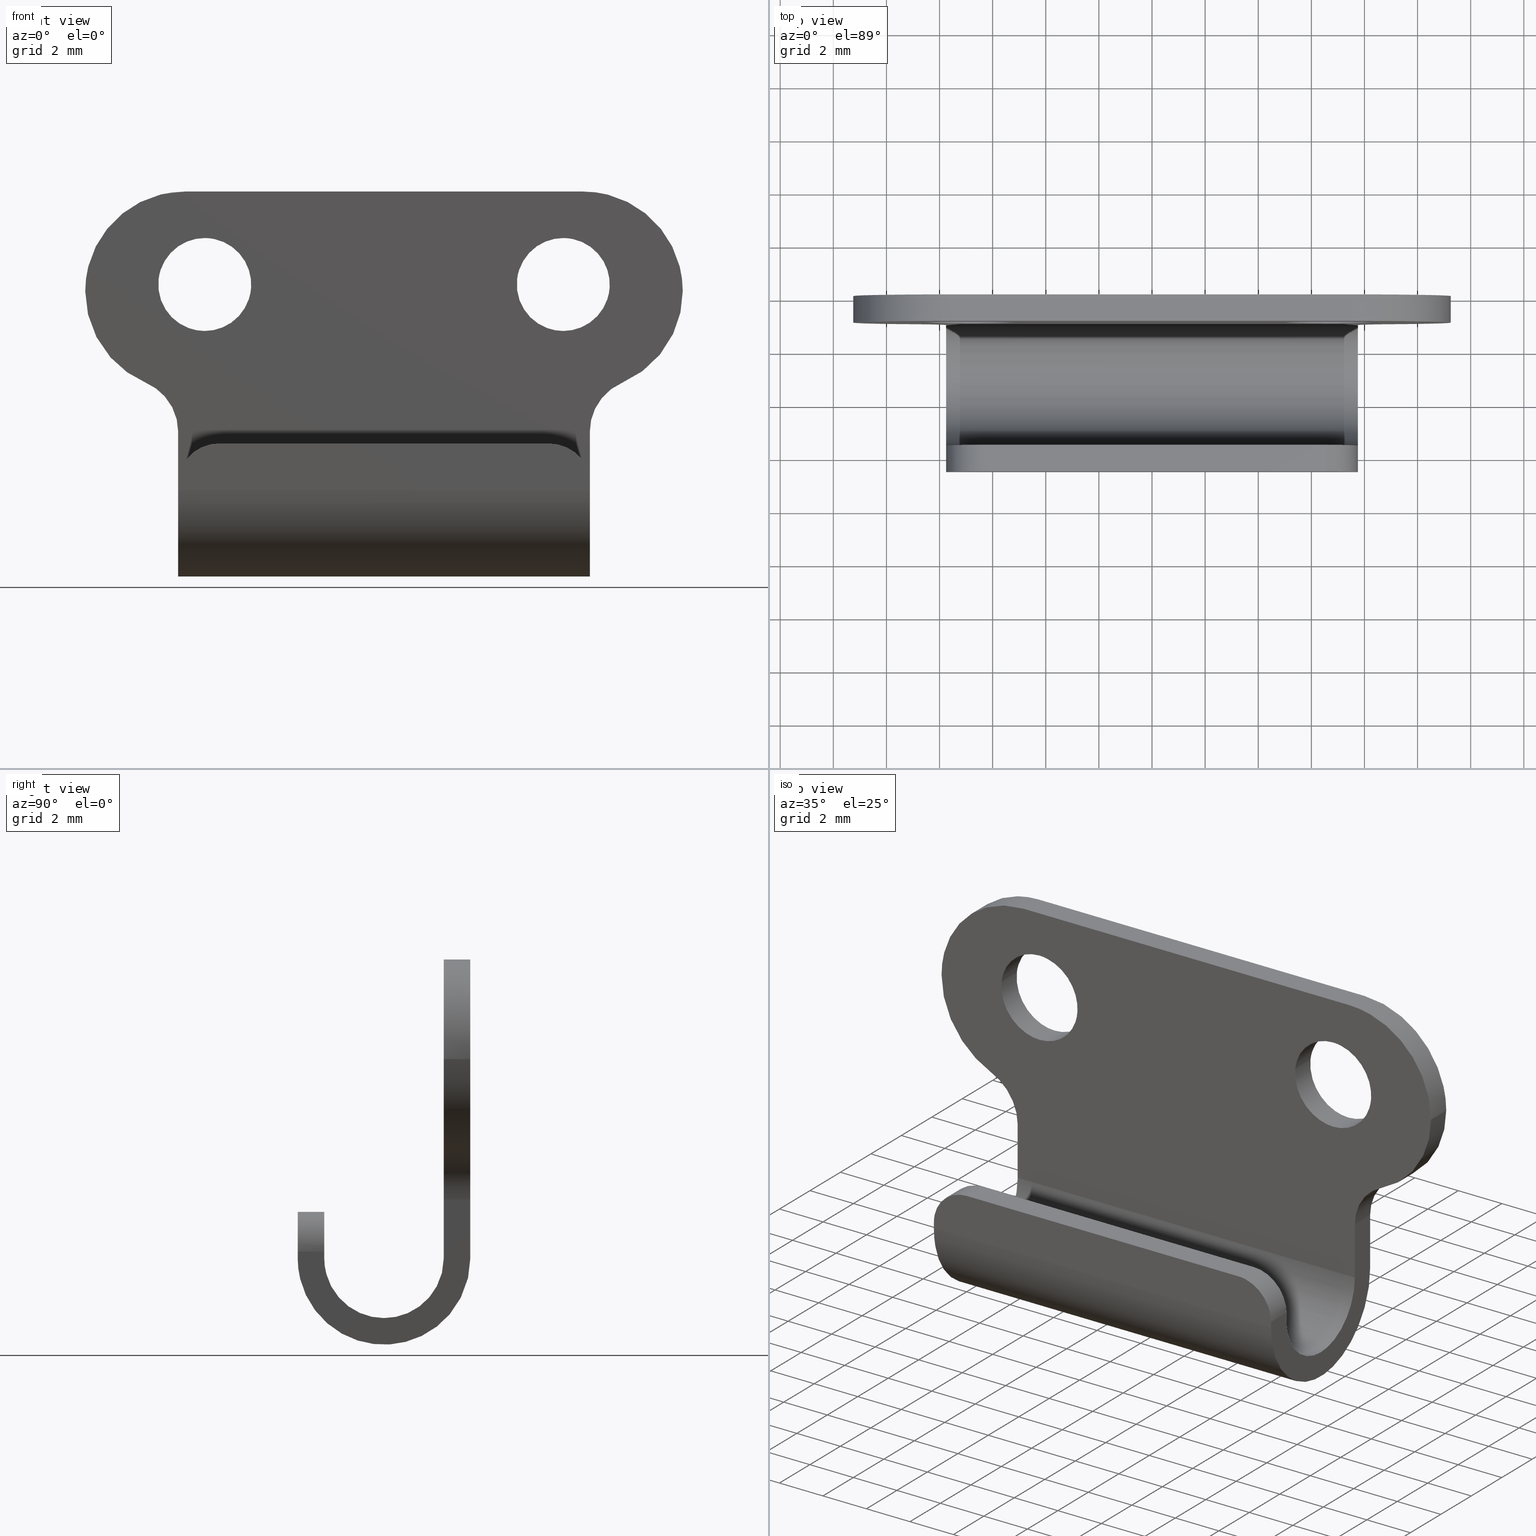
[diagram: canonical four-view strip — front | top / right | iso, engineering-drawing reading convention]
A machine part, canonical four-view strip (front | top / right | iso — engineering-drawing reading convention). The complete STEP part file that produces these views, byte-faithful:
ISO-10303-21;
HEADER;
/****************************************************************
 * Generated by software with PDE/Lib inside                    *
 * PDElib Version 4.4.1-0003, patched  Thursday August 19 11:58 *
 * International Technegroup Inc. (www.iti-oh.com)              *
 ****************************************************************/
FILE_DESCRIPTION((''),'2;1');
FILE_NAME('','2005-07-15T14:41:17',(''),(''),'','CADfix','');
FILE_SCHEMA(('AUTOMOTIVE_DESIGN'));
ENDSEC;
DATA;
#5=APPLICATION_CONTEXT('automotive design');
#6=APPLICATION_PROTOCOL_DEFINITION('Draft International Standard','automotive_design',1998,#5);
#7=PRODUCT_CONTEXT('None',#5,'mechanical');
#8=PRODUCT('keeper','','None',(#7));
#9=PRODUCT_RELATED_PRODUCT_CATEGORY('part','description',(#8));
#10=PRODUCT_DEFINITION_FORMATION('None','None',#8);
#11=PRODUCT_DEFINITION_CONTEXT('part definition',#5,'design');
#12=PRODUCT_DEFINITION('None','None',#10,#11);
#18=(NAMED_UNIT(*)PLANE_ANGLE_UNIT()SI_UNIT($,.RADIAN.));
#19=DIMENSIONAL_EXPONENTS(0.0,0.0,0.0,0.0,0.0,0.0,0.0);
#20=PLANE_ANGLE_MEASURE_WITH_UNIT(PLANE_ANGLE_MEASURE(0.017453292500000),#18);
#24=(CONVERSION_BASED_UNIT('DEGREE',#20)NAMED_UNIT(#19)PLANE_ANGLE_UNIT());
#28=(NAMED_UNIT(*)SI_UNIT($,.STERADIAN.)SOLID_ANGLE_UNIT());
#32=(LENGTH_UNIT()NAMED_UNIT(*)SI_UNIT(.MILLI.,.METRE.));
#34=UNCERTAINTY_MEASURE_WITH_UNIT(LENGTH_MEASURE(0.001000000000000),#32,'DISTANCE_ACCURACY_VALUE','');
#36=(GEOMETRIC_REPRESENTATION_CONTEXT(3)GLOBAL_UNCERTAINTY_ASSIGNED_CONTEXT((#34))GLOBAL_UNIT_ASSIGNED_CONTEXT((#24,#28,#32))REPRESENTATION_CONTEXT('None','None'));
#37=AXIS2_PLACEMENT_3D('',#38,#39,#40);
#38=CARTESIAN_POINT('',(0.0,0.0,0.0));
#39=DIRECTION('',(0.0,0.0,1.0));
#40=DIRECTION('',(1.0,0.0,0.0));
#41=ADVANCED_BREP_SHAPE_REPRESENTATION('',(#37,#1203),#36);
#42=PRODUCT_DEFINITION_SHAPE('','',#12);
#43=SHAPE_DEFINITION_REPRESENTATION(#42,#41);
#44=CARTESIAN_POINT('',(-8.487766671136418,0.025000000000000,-3.293440089350673));
#45=CARTESIAN_POINT('',(-8.493678327035061,0.025000000000000,-3.343174224883540));
#46=CARTESIAN_POINT('',(-8.496735897238267,0.025000000000000,-3.393165055814000));
#47=CARTESIAN_POINT('',(-8.603570841424267,0.025000000000000,-5.139900953052267));
#48=CARTESIAN_POINT('',(-6.856834944186000,0.025000000000000,-5.246735897238267));
#49=CARTESIAN_POINT('',(-5.110099046947734,0.025000000000000,-5.353570841424266));
#50=CARTESIAN_POINT('',(-5.003264102761733,0.025000000000000,-3.606834944186000));
#51=CARTESIAN_POINT('',(-8.487766671136418,-1.025625000000000,-3.293440089350673));
#52=CARTESIAN_POINT('',(-8.493678327035061,-1.025625000000000,-3.343174224883540));
#53=CARTESIAN_POINT('',(-8.496735897238267,-1.025625000000000,-3.393165055814000));
#54=CARTESIAN_POINT('',(-8.603570841424267,-1.025625000000000,-5.139900953052267));
#55=CARTESIAN_POINT('',(-6.856834944186000,-1.025625000000000,-5.246735897238267));
#56=CARTESIAN_POINT('',(-5.110099046947734,-1.025625000000000,-5.353570841424266));
#57=CARTESIAN_POINT('',(-5.003264102761733,-1.025625000000000,-3.606834944186000));
#65=(BOUNDED_SURFACE()B_SPLINE_SURFACE(2,1,((#44,#51),(#45,#52),(#46,#53),(#47,#54),(#48,#55),(#49,#56),(#50,#57)),.UNSPECIFIED.,.F.,.F.,.U.)B_SPLINE_SURFACE_WITH_KNOTS((3,2,2,3),(2,2),(3.078760800517997,3.141592653589793,4.712388980384690,6.283185307179586),(0.0,1.0),.UNSPECIFIED.)GEOMETRIC_REPRESENTATION_ITEM()RATIONAL_B_SPLINE_SURFACE(((0.977505800795127,0.977505800795127),(0.988284271247462,0.988284271247462),(1.0,1.0),(0.707106781186548,0.707106781186548),(1.0,1.0),(0.707106781186548,0.707106781186548),(1.0,1.0)))REPRESENTATION_ITEM('')SURFACE());
#66=CARTESIAN_POINT('',(-8.487766671132423,3.549285E-017,-3.293440089317080));
#67=VERTEX_POINT('',#66);
#68=CARTESIAN_POINT('',(-6.750000000000000,0.0,-5.250000000000000));
#69=VERTEX_POINT('',#68);
#70=CARTESIAN_POINT('',(-8.487766671132423,3.549285E-017,-3.293440089317080));
#71=CARTESIAN_POINT('',(-8.500000000000002,0.0,-3.396357790575210));
#72=CARTESIAN_POINT('',(-8.500000000000000,0.0,-3.500000000000000));
#73=CARTESIAN_POINT('',(-8.500000000000000,0.0,-5.249999999999999));
#74=CARTESIAN_POINT('',(-6.750000000000000,0.0,-5.250000000000000));
#82=(BOUNDED_CURVE()B_SPLINE_CURVE(2,(#70,#71,#72,#73,#74),.UNSPECIFIED.,.F.,.U.)B_SPLINE_CURVE_WITH_KNOTS((3,2,3),(0.229562473509110,0.250000000000000,0.500000000000000),.UNSPECIFIED.)CURVE()GEOMETRIC_REPRESENTATION_ITEM()RATIONAL_B_SPLINE_CURVE((0.956026754175079,0.976055948325992,1.0,0.707106781186547,1.0))REPRESENTATION_ITEM(''));
#83=EDGE_CURVE('',#67,#69,#82,.T.);
#84=ORIENTED_EDGE('',*,*,#83,.F.);
#85=CARTESIAN_POINT('',(-8.487766671132423,-1.0,-3.293440089317080));
#86=VERTEX_POINT('',#85);
#87=CARTESIAN_POINT('',(-8.487766671132423,3.549285E-017,-3.293440089317080));
#88=CARTESIAN_POINT('',(-8.487766671132423,-1.0,-3.293440089317080));
#89=QUASI_UNIFORM_CURVE('',1,(#87,#88),.UNSPECIFIED.,.F.,.U.);
#90=EDGE_CURVE('',#67,#86,#89,.T.);
#91=ORIENTED_EDGE('',*,*,#90,.T.);
#92=CARTESIAN_POINT('',(-6.750000000000000,-1.0,-5.250000000000000));
#93=VERTEX_POINT('',#92);
#94=CARTESIAN_POINT('',(-8.487766671132423,-1.0,-3.293440089317080));
#95=CARTESIAN_POINT('',(-8.500000000000002,-1.0,-3.396357790575210));
#96=CARTESIAN_POINT('',(-8.500000000000000,-1.0,-3.500000000000000));
#97=CARTESIAN_POINT('',(-8.500000000000000,-1.0,-5.249999999999999));
#98=CARTESIAN_POINT('',(-6.750000000000000,-1.0,-5.250000000000000));
#106=(BOUNDED_CURVE()B_SPLINE_CURVE(2,(#94,#95,#96,#97,#98),.UNSPECIFIED.,.F.,.U.)B_SPLINE_CURVE_WITH_KNOTS((3,2,3),(0.229562473509110,0.250000000000000,0.500000000000000),.UNSPECIFIED.)CURVE()GEOMETRIC_REPRESENTATION_ITEM()RATIONAL_B_SPLINE_CURVE((0.956026754175079,0.976055948325992,1.0,0.707106781186547,1.0))REPRESENTATION_ITEM(''));
#107=EDGE_CURVE('',#86,#93,#106,.T.);
#108=ORIENTED_EDGE('',*,*,#107,.T.);
#109=CARTESIAN_POINT('',(-5.003264102764145,-1.0,-3.606834944225449));
#110=VERTEX_POINT('',#109);
#111=CARTESIAN_POINT('',(-6.750000000000000,-1.0,-5.250000000000000));
#112=CARTESIAN_POINT('',(-5.103764382989522,-1.0,-5.250000000000000));
#113=CARTESIAN_POINT('',(-5.003264102764145,-1.0,-3.606834944225449));
#121=(BOUNDED_CURVE()B_SPLINE_CURVE(2,(#111,#112,#113),.UNSPECIFIED.,.F.,.U.)B_SPLINE_CURVE_WITH_KNOTS((3,3),(0.500000000000000,0.739332962234176),.UNSPECIFIED.)CURVE()GEOMETRIC_REPRESENTATION_ITEM()RATIONAL_B_SPLINE_CURVE((1.0,0.719603993292295,0.976072041656500))REPRESENTATION_ITEM(''));
#122=EDGE_CURVE('',#93,#110,#121,.T.);
#123=ORIENTED_EDGE('',*,*,#122,.T.);
#124=CARTESIAN_POINT('',(-5.003264102764145,3.469447E-017,-3.606834944225448));
#125=VERTEX_POINT('',#124);
#126=CARTESIAN_POINT('',(-5.003264102764145,3.469447E-017,-3.606834944225448));
#127=CARTESIAN_POINT('',(-5.003264102764145,-1.0,-3.606834944225449));
#128=QUASI_UNIFORM_CURVE('',1,(#126,#127),.UNSPECIFIED.,.F.,.U.);
#129=EDGE_CURVE('',#125,#110,#128,.T.);
#130=ORIENTED_EDGE('',*,*,#129,.F.);
#131=CARTESIAN_POINT('',(-6.750000000000000,0.0,-5.250000000000000));
#132=CARTESIAN_POINT('',(-5.103764382989522,0.0,-5.250000000000000));
#133=CARTESIAN_POINT('',(-5.003264102764145,3.469447E-017,-3.606834944225449));
#141=(BOUNDED_CURVE()B_SPLINE_CURVE(2,(#131,#132,#133),.UNSPECIFIED.,.F.,.U.)B_SPLINE_CURVE_WITH_KNOTS((3,3),(0.500000000000000,0.739332962234176),.UNSPECIFIED.)CURVE()GEOMETRIC_REPRESENTATION_ITEM()RATIONAL_B_SPLINE_CURVE((1.0,0.719603993292295,0.976072041656500))REPRESENTATION_ITEM(''));
#142=EDGE_CURVE('',#69,#125,#141,.T.);
#143=ORIENTED_EDGE('',*,*,#142,.F.);
#144=EDGE_LOOP('',(#84,#91,#108,#123,#130,#143));
#145=FACE_OUTER_BOUND('',#144,.T.);
#146=ADVANCED_FACE('',(#145),#65,.F.);
#147=CARTESIAN_POINT('',(-5.003264102761733,0.025000000000000,-3.606834944186000));
#148=CARTESIAN_POINT('',(-4.896429158575733,0.025000000000000,-1.860099046947733));
#149=CARTESIAN_POINT('',(-6.643165055814000,0.025000000000000,-1.753264102761733));
#150=CARTESIAN_POINT('',(-8.292701108969126,0.025000000000000,-1.652374155718078));
#151=CARTESIAN_POINT('',(-8.487766671136418,0.025000000000000,-3.293440089350673));
#152=CARTESIAN_POINT('',(-5.003264102761733,-1.025625000000000,-3.606834944186000));
#153=CARTESIAN_POINT('',(-4.896429158575733,-1.025625000000000,-1.860099046947733));
#154=CARTESIAN_POINT('',(-6.643165055814000,-1.025625000000000,-1.753264102761733));
#155=CARTESIAN_POINT('',(-8.292701108969126,-1.025625000000000,-1.652374155718078));
#156=CARTESIAN_POINT('',(-8.487766671136418,-1.025625000000000,-3.293440089350673));
#164=(BOUNDED_SURFACE()B_SPLINE_SURFACE(2,1,((#147,#152),(#148,#153),(#149,#154),(#150,#155),(#151,#156)),.UNSPECIFIED.,.F.,.F.,.U.)B_SPLINE_SURFACE_WITH_KNOTS((3,2,3),(2,2),(0.0,1.570796326794897,3.078760800517997),(0.0,1.0),.UNSPECIFIED.)GEOMETRIC_REPRESENTATION_ITEM()RATIONAL_B_SPLINE_SURFACE(((1.0,1.0),(0.707106781186548,0.707106781186548),(1.0,1.0),(0.718822509939086,0.718822509939086),(0.977505800795127,0.977505800795127)))REPRESENTATION_ITEM('')SURFACE());
#165=CARTESIAN_POINT('',(-6.750000000000000,0.0,-1.750000000000000));
#166=VERTEX_POINT('',#165);
#167=CARTESIAN_POINT('',(-6.750000000000000,0.0,-1.750000000000000));
#168=CARTESIAN_POINT('',(-8.304305420354378,0.0,-1.749999999999999));
#169=CARTESIAN_POINT('',(-8.487766671132423,3.549285E-017,-3.293440089317081));
#177=(BOUNDED_CURVE()B_SPLINE_CURVE(2,(#167,#168,#169),.UNSPECIFIED.,.F.,.U.)B_SPLINE_CURVE_WITH_KNOTS((3,3),(0.0,0.229562473509110),.UNSPECIFIED.)CURVE()GEOMETRIC_REPRESENTATION_ITEM()RATIONAL_B_SPLINE_CURVE((1.0,0.731050832860555,0.956026754175079))REPRESENTATION_ITEM(''));
#178=EDGE_CURVE('',#166,#67,#177,.T.);
#179=ORIENTED_EDGE('',*,*,#178,.F.);
#180=CARTESIAN_POINT('',(-5.003264102764145,3.469447E-017,-3.606834944225448));
#181=CARTESIAN_POINT('',(-5.000000000000001,0.0,-3.553467335812090));
#182=CARTESIAN_POINT('',(-5.0,0.0,-3.500000000000000));
#183=CARTESIAN_POINT('',(-4.999999999999999,0.0,-1.750000000000000));
#184=CARTESIAN_POINT('',(-6.750000000000000,0.0,-1.750000000000000));
#192=(BOUNDED_CURVE()B_SPLINE_CURVE(2,(#180,#181,#182,#183,#184),.UNSPECIFIED.,.F.,.U.)B_SPLINE_CURVE_WITH_KNOTS((3,2,3),(0.739332962234175,0.750000000000000,1.0),.UNSPECIFIED.)CURVE()GEOMETRIC_REPRESENTATION_ITEM()RATIONAL_B_SPLINE_CURVE((0.976072041656499,0.987502787894251,1.0,0.707106781186547,1.0))REPRESENTATION_ITEM(''));
#193=EDGE_CURVE('',#125,#166,#192,.T.);
#194=ORIENTED_EDGE('',*,*,#193,.F.);
#195=ORIENTED_EDGE('',*,*,#129,.T.);
#196=CARTESIAN_POINT('',(-6.750000000000000,-1.0,-1.750000000000000));
#197=VERTEX_POINT('',#196);
#198=CARTESIAN_POINT('',(-5.003264102764145,-1.0,-3.606834944225449));
#199=CARTESIAN_POINT('',(-5.0,-1.0,-3.553467335812090));
#200=CARTESIAN_POINT('',(-5.0,-1.0,-3.500000000000000));
#201=CARTESIAN_POINT('',(-4.999999999999999,-1.0,-1.750000000000000));
#202=CARTESIAN_POINT('',(-6.750000000000000,-1.0,-1.750000000000000));
#210=(BOUNDED_CURVE()B_SPLINE_CURVE(2,(#198,#199,#200,#201,#202),.UNSPECIFIED.,.F.,.U.)B_SPLINE_CURVE_WITH_KNOTS((3,2,3),(0.739332962234175,0.750000000000000,1.0),.UNSPECIFIED.)CURVE()GEOMETRIC_REPRESENTATION_ITEM()RATIONAL_B_SPLINE_CURVE((0.976072041656498,0.987502787894251,1.0,0.707106781186547,1.0))REPRESENTATION_ITEM(''));
#211=EDGE_CURVE('',#110,#197,#210,.T.);
#212=ORIENTED_EDGE('',*,*,#211,.T.);
#213=CARTESIAN_POINT('',(-6.750000000000000,-1.0,-1.750000000000000));
#214=CARTESIAN_POINT('',(-8.304305420354378,-1.0,-1.749999999999999));
#215=CARTESIAN_POINT('',(-8.487766671132423,-1.0,-3.293440089317081));
#223=(BOUNDED_CURVE()B_SPLINE_CURVE(2,(#213,#214,#215),.UNSPECIFIED.,.F.,.U.)B_SPLINE_CURVE_WITH_KNOTS((3,3),(0.0,0.229562473509110),.UNSPECIFIED.)CURVE()GEOMETRIC_REPRESENTATION_ITEM()RATIONAL_B_SPLINE_CURVE((1.0,0.731050832860555,0.956026754175079))REPRESENTATION_ITEM(''));
#224=EDGE_CURVE('',#197,#86,#223,.T.);
#225=ORIENTED_EDGE('',*,*,#224,.T.);
#226=ORIENTED_EDGE('',*,*,#90,.F.);
#227=EDGE_LOOP('',(#179,#194,#195,#212,#225,#226));
#228=FACE_OUTER_BOUND('',#227,.T.);
#229=ADVANCED_FACE('',(#228),#164,.F.);
#230=CARTESIAN_POINT('',(5.012233328863585,0.025000000000000,-3.293440089350673));
#231=CARTESIAN_POINT('',(5.006321672964941,0.025000000000000,-3.343174224883540));
#232=CARTESIAN_POINT('',(5.003264102761733,0.025000000000000,-3.393165055814000));
#233=CARTESIAN_POINT('',(4.896429158575733,0.025000000000000,-5.139900953052267));
#234=CARTESIAN_POINT('',(6.643165055814000,0.025000000000000,-5.246735897238267));
#235=CARTESIAN_POINT('',(8.389900953052269,0.025000000000000,-5.353570841424266));
#236=CARTESIAN_POINT('',(8.496735897238267,0.025000000000000,-3.606834944186000));
#237=CARTESIAN_POINT('',(5.012233328863585,-1.025625000000000,-3.293440089350673));
#238=CARTESIAN_POINT('',(5.006321672964941,-1.025625000000000,-3.343174224883540));
#239=CARTESIAN_POINT('',(5.003264102761733,-1.025625000000000,-3.393165055814000));
#240=CARTESIAN_POINT('',(4.896429158575733,-1.025625000000000,-5.139900953052267));
#241=CARTESIAN_POINT('',(6.643165055814000,-1.025625000000000,-5.246735897238267));
#242=CARTESIAN_POINT('',(8.389900953052269,-1.025625000000000,-5.353570841424266));
#243=CARTESIAN_POINT('',(8.496735897238267,-1.025625000000000,-3.606834944186000));
#251=(BOUNDED_SURFACE()B_SPLINE_SURFACE(2,1,((#230,#237),(#231,#238),(#232,#239),(#233,#240),(#234,#241),(#235,#242),(#236,#243)),.UNSPECIFIED.,.F.,.F.,.U.)B_SPLINE_SURFACE_WITH_KNOTS((3,2,2,3),(2,2),(3.078760800517997,3.141592653589793,4.712388980384690,6.283185307179586),(0.0,1.0),.UNSPECIFIED.)GEOMETRIC_REPRESENTATION_ITEM()RATIONAL_B_SPLINE_SURFACE(((0.977505800795127,0.977505800795127),(0.988284271247462,0.988284271247462),(1.0,1.0),(0.707106781186548,0.707106781186548),(1.0,1.0),(0.707106781186548,0.707106781186548),(1.0,1.0)))REPRESENTATION_ITEM('')SURFACE());
#252=CARTESIAN_POINT('',(5.012233328867577,3.549285E-017,-3.293440089317080));
#253=VERTEX_POINT('',#252);
#254=CARTESIAN_POINT('',(6.750000000000000,0.0,-5.250000000000000));
#255=VERTEX_POINT('',#254);
#256=CARTESIAN_POINT('',(5.012233328867577,3.549285E-017,-3.293440089317080));
#257=CARTESIAN_POINT('',(5.0,0.0,-3.396357790575210));
#258=CARTESIAN_POINT('',(5.0,0.0,-3.500000000000000));
#259=CARTESIAN_POINT('',(4.999999999999999,0.0,-5.249999999999999));
#260=CARTESIAN_POINT('',(6.750000000000000,0.0,-5.250000000000000));
#268=(BOUNDED_CURVE()B_SPLINE_CURVE(2,(#256,#257,#258,#259,#260),.UNSPECIFIED.,.F.,.U.)B_SPLINE_CURVE_WITH_KNOTS((3,2,3),(0.229562473509110,0.250000000000000,0.500000000000000),.UNSPECIFIED.)CURVE()GEOMETRIC_REPRESENTATION_ITEM()RATIONAL_B_SPLINE_CURVE((0.956026754175079,0.976055948325992,1.0,0.707106781186547,1.0))REPRESENTATION_ITEM(''));
#269=EDGE_CURVE('',#253,#255,#268,.T.);
#270=ORIENTED_EDGE('',*,*,#269,.F.);
#271=CARTESIAN_POINT('',(5.012233328867577,-1.0,-3.293440089317081));
#272=VERTEX_POINT('',#271);
#273=CARTESIAN_POINT('',(5.012233328867577,3.549285E-017,-3.293440089317080));
#274=CARTESIAN_POINT('',(5.012233328867577,-1.0,-3.293440089317081));
#275=QUASI_UNIFORM_CURVE('',1,(#273,#274),.UNSPECIFIED.,.F.,.U.);
#276=EDGE_CURVE('',#253,#272,#275,.T.);
#277=ORIENTED_EDGE('',*,*,#276,.T.);
#278=CARTESIAN_POINT('',(6.750000000000000,-1.0,-5.250000000000000));
#279=VERTEX_POINT('',#278);
#280=CARTESIAN_POINT('',(5.012233328867577,-1.0,-3.293440089317080));
#281=CARTESIAN_POINT('',(5.0,-1.0,-3.396357790575210));
#282=CARTESIAN_POINT('',(5.0,-1.0,-3.500000000000000));
#283=CARTESIAN_POINT('',(4.999999999999999,-1.0,-5.249999999999999));
#284=CARTESIAN_POINT('',(6.750000000000000,-1.0,-5.250000000000000));
#292=(BOUNDED_CURVE()B_SPLINE_CURVE(2,(#280,#281,#282,#283,#284),.UNSPECIFIED.,.F.,.U.)B_SPLINE_CURVE_WITH_KNOTS((3,2,3),(0.229562473509110,0.250000000000000,0.500000000000000),.UNSPECIFIED.)CURVE()GEOMETRIC_REPRESENTATION_ITEM()RATIONAL_B_SPLINE_CURVE((0.956026754175079,0.976055948325993,1.0,0.707106781186547,1.0))REPRESENTATION_ITEM(''));
#293=EDGE_CURVE('',#272,#279,#292,.T.);
#294=ORIENTED_EDGE('',*,*,#293,.T.);
#295=CARTESIAN_POINT('',(8.496735897235855,-1.0,-3.606834944225449));
#296=VERTEX_POINT('',#295);
#297=CARTESIAN_POINT('',(6.750000000000000,-1.0,-5.250000000000000));
#298=CARTESIAN_POINT('',(8.396235617010479,-1.0,-5.250000000000000));
#299=CARTESIAN_POINT('',(8.496735897235855,-1.0,-3.606834944225449));
#307=(BOUNDED_CURVE()B_SPLINE_CURVE(2,(#297,#298,#299),.UNSPECIFIED.,.F.,.U.)B_SPLINE_CURVE_WITH_KNOTS((3,3),(0.500000000000000,0.739332962234176),.UNSPECIFIED.)CURVE()GEOMETRIC_REPRESENTATION_ITEM()RATIONAL_B_SPLINE_CURVE((1.0,0.719603993292295,0.976072041656500))REPRESENTATION_ITEM(''));
#308=EDGE_CURVE('',#279,#296,#307,.T.);
#309=ORIENTED_EDGE('',*,*,#308,.T.);
#310=CARTESIAN_POINT('',(8.496735897235855,3.469447E-017,-3.606834944225448));
#311=VERTEX_POINT('',#310);
#312=CARTESIAN_POINT('',(8.496735897235855,3.469447E-017,-3.606834944225448));
#313=CARTESIAN_POINT('',(8.496735897235855,-1.0,-3.606834944225449));
#314=QUASI_UNIFORM_CURVE('',1,(#312,#313),.UNSPECIFIED.,.F.,.U.);
#315=EDGE_CURVE('',#311,#296,#314,.T.);
#316=ORIENTED_EDGE('',*,*,#315,.F.);
#317=CARTESIAN_POINT('',(6.750000000000000,0.0,-5.250000000000000));
#318=CARTESIAN_POINT('',(8.396235617010479,0.0,-5.250000000000000));
#319=CARTESIAN_POINT('',(8.496735897235855,3.469447E-017,-3.606834944225449));
#327=(BOUNDED_CURVE()B_SPLINE_CURVE(2,(#317,#318,#319),.UNSPECIFIED.,.F.,.U.)B_SPLINE_CURVE_WITH_KNOTS((3,3),(0.500000000000000,0.739332962234176),.UNSPECIFIED.)CURVE()GEOMETRIC_REPRESENTATION_ITEM()RATIONAL_B_SPLINE_CURVE((1.0,0.719603993292295,0.976072041656500))REPRESENTATION_ITEM(''));
#328=EDGE_CURVE('',#255,#311,#327,.T.);
#329=ORIENTED_EDGE('',*,*,#328,.F.);
#330=EDGE_LOOP('',(#270,#277,#294,#309,#316,#329));
#331=FACE_OUTER_BOUND('',#330,.T.);
#332=ADVANCED_FACE('',(#331),#251,.F.);
#333=CARTESIAN_POINT('',(8.496735897238267,0.025000000000000,-3.606834944186000));
#334=CARTESIAN_POINT('',(8.603570841424267,0.025000000000000,-1.860099046947733));
#335=CARTESIAN_POINT('',(6.856834944186000,0.025000000000000,-1.753264102761733));
#336=CARTESIAN_POINT('',(5.207298891030874,0.025000000000000,-1.652374155718078));
#337=CARTESIAN_POINT('',(5.012233328863585,0.025000000000000,-3.293440089350673));
#338=CARTESIAN_POINT('',(8.496735897238267,-1.025625000000000,-3.606834944186000));
#339=CARTESIAN_POINT('',(8.603570841424267,-1.025625000000000,-1.860099046947733));
#340=CARTESIAN_POINT('',(6.856834944186000,-1.025625000000000,-1.753264102761733));
#341=CARTESIAN_POINT('',(5.207298891030874,-1.025625000000000,-1.652374155718078));
#342=CARTESIAN_POINT('',(5.012233328863585,-1.025625000000000,-3.293440089350673));
#350=(BOUNDED_SURFACE()B_SPLINE_SURFACE(2,1,((#333,#338),(#334,#339),(#335,#340),(#336,#341),(#337,#342)),.UNSPECIFIED.,.F.,.F.,.U.)B_SPLINE_SURFACE_WITH_KNOTS((3,2,3),(2,2),(0.0,1.570796326794897,3.078760800517997),(0.0,1.0),.UNSPECIFIED.)GEOMETRIC_REPRESENTATION_ITEM()RATIONAL_B_SPLINE_SURFACE(((1.0,1.0),(0.707106781186548,0.707106781186548),(1.0,1.0),(0.718822509939086,0.718822509939086),(0.977505800795127,0.977505800795127)))REPRESENTATION_ITEM('')SURFACE());
#351=CARTESIAN_POINT('',(6.750000000000000,0.0,-1.750000000000000));
#352=VERTEX_POINT('',#351);
#353=CARTESIAN_POINT('',(6.750000000000000,0.0,-1.750000000000000));
#354=CARTESIAN_POINT('',(5.195694579645622,0.0,-1.750000000000000));
#355=CARTESIAN_POINT('',(5.012233328867579,3.549285E-017,-3.293440089317080));
#363=(BOUNDED_CURVE()B_SPLINE_CURVE(2,(#353,#354,#355),.UNSPECIFIED.,.F.,.U.)B_SPLINE_CURVE_WITH_KNOTS((3,3),(0.0,0.229562473509110),.UNSPECIFIED.)CURVE()GEOMETRIC_REPRESENTATION_ITEM()RATIONAL_B_SPLINE_CURVE((1.0,0.731050832860555,0.956026754175079))REPRESENTATION_ITEM(''));
#364=EDGE_CURVE('',#352,#253,#363,.T.);
#365=ORIENTED_EDGE('',*,*,#364,.F.);
#366=CARTESIAN_POINT('',(8.496735897235855,3.469447E-017,-3.606834944225448));
#367=CARTESIAN_POINT('',(8.500000000000000,0.0,-3.553467335812090));
#368=CARTESIAN_POINT('',(8.500000000000000,0.0,-3.500000000000000));
#369=CARTESIAN_POINT('',(8.500000000000000,0.0,-1.750000000000000));
#370=CARTESIAN_POINT('',(6.750000000000000,0.0,-1.750000000000000));
#378=(BOUNDED_CURVE()B_SPLINE_CURVE(2,(#366,#367,#368,#369,#370),.UNSPECIFIED.,.F.,.U.)B_SPLINE_CURVE_WITH_KNOTS((3,2,3),(0.739332962234175,0.750000000000000,1.0),.UNSPECIFIED.)CURVE()GEOMETRIC_REPRESENTATION_ITEM()RATIONAL_B_SPLINE_CURVE((0.976072041656499,0.987502787894251,1.0,0.707106781186547,1.0))REPRESENTATION_ITEM(''));
#379=EDGE_CURVE('',#311,#352,#378,.T.);
#380=ORIENTED_EDGE('',*,*,#379,.F.);
#381=ORIENTED_EDGE('',*,*,#315,.T.);
#382=CARTESIAN_POINT('',(6.750000000000000,-1.0,-1.750000000000000));
#383=VERTEX_POINT('',#382);
#384=CARTESIAN_POINT('',(8.496735897235855,-1.0,-3.606834944225449));
#385=CARTESIAN_POINT('',(8.499999999999998,-1.0,-3.553467335812090));
#386=CARTESIAN_POINT('',(8.500000000000000,-1.0,-3.500000000000000));
#387=CARTESIAN_POINT('',(8.500000000000000,-1.0,-1.750000000000000));
#388=CARTESIAN_POINT('',(6.750000000000000,-1.0,-1.750000000000000));
#396=(BOUNDED_CURVE()B_SPLINE_CURVE(2,(#384,#385,#386,#387,#388),.UNSPECIFIED.,.F.,.U.)B_SPLINE_CURVE_WITH_KNOTS((3,2,3),(0.739332962234175,0.750000000000000,1.0),.UNSPECIFIED.)CURVE()GEOMETRIC_REPRESENTATION_ITEM()RATIONAL_B_SPLINE_CURVE((0.976072041656498,0.987502787894251,1.0,0.707106781186547,1.0))REPRESENTATION_ITEM(''));
#397=EDGE_CURVE('',#296,#383,#396,.T.);
#398=ORIENTED_EDGE('',*,*,#397,.T.);
#399=CARTESIAN_POINT('',(6.750000000000000,-1.0,-1.750000000000000));
#400=CARTESIAN_POINT('',(5.195694579645622,-1.0,-1.749999999999999));
#401=CARTESIAN_POINT('',(5.012233328867578,-1.0,-3.293440089317081));
#409=(BOUNDED_CURVE()B_SPLINE_CURVE(2,(#399,#400,#401),.UNSPECIFIED.,.F.,.U.)B_SPLINE_CURVE_WITH_KNOTS((3,3),(0.0,0.229562473509110),.UNSPECIFIED.)CURVE()GEOMETRIC_REPRESENTATION_ITEM()RATIONAL_B_SPLINE_CURVE((1.0,0.731050832860555,0.956026754175079))REPRESENTATION_ITEM(''));
#410=EDGE_CURVE('',#383,#272,#409,.T.);
#411=ORIENTED_EDGE('',*,*,#410,.T.);
#412=ORIENTED_EDGE('',*,*,#276,.F.);
#413=EDGE_LOOP('',(#365,#380,#381,#398,#411,#412));
#414=FACE_OUTER_BOUND('',#413,.T.);
#415=ADVANCED_FACE('',(#414),#350,.F.);
#416=CARTESIAN_POINT('',(-7.749485987463336,-5.474999999999999,-11.039265422461810));
#417=CARTESIAN_POINT('',(-7.749485987463336,-6.525625000000001,-11.039265422461810));
#418=CARTESIAN_POINT('',(-7.792738390249394,-5.474999999999998,-9.387522799167920));
#419=CARTESIAN_POINT('',(-7.792738390249394,-6.525625000000001,-9.387522799167920));
#420=CARTESIAN_POINT('',(-6.144519886561025,-5.474999999999999,-9.503713280928787));
#421=CARTESIAN_POINT('',(-6.144519886561025,-6.525625000000001,-9.503713280928787));
#429=(BOUNDED_SURFACE()B_SPLINE_SURFACE(1,2,((#416,#418,#420),(#417,#419,#421)),.UNSPECIFIED.,.F.,.F.,.U.)B_SPLINE_SURFACE_WITH_KNOTS((2,2),(3,3),(0.0,1.0),(0.0,2.656713516132539),.UNSPECIFIED.)GEOMETRIC_REPRESENTATION_ITEM()RATIONAL_B_SPLINE_SURFACE(((1.0,0.670944223154768,0.996392648609106),(1.0,0.670944223154768,0.996392648609106)))REPRESENTATION_ITEM('')SURFACE());
#430=CARTESIAN_POINT('',(-7.750000000000000,-5.500000000000000,-11.0));
#431=VERTEX_POINT('',#430);
#432=CARTESIAN_POINT('',(-6.250000000000000,-5.500000000000000,-9.500000000000000));
#433=VERTEX_POINT('',#432);
#434=CARTESIAN_POINT('',(-7.750000000000000,-5.500000000000000,-11.0));
#435=CARTESIAN_POINT('',(-7.750000000000001,-5.500000000000001,-9.500000000000000));
#436=CARTESIAN_POINT('',(-6.250000000000000,-5.500000000000000,-9.500000000000000));
#444=(BOUNDED_CURVE()B_SPLINE_CURVE(2,(#434,#435,#436),.UNSPECIFIED.,.F.,.U.)CURVE()GEOMETRIC_REPRESENTATION_ITEM()QUASI_UNIFORM_CURVE()RATIONAL_B_SPLINE_CURVE((1.0,0.707106781186548,1.0))REPRESENTATION_ITEM(''));
#445=EDGE_CURVE('',#431,#433,#444,.T.);
#446=ORIENTED_EDGE('',*,*,#445,.F.);
#447=CARTESIAN_POINT('',(-7.750000000000000,-6.500000000000000,-11.0));
#448=VERTEX_POINT('',#447);
#449=CARTESIAN_POINT('',(-7.750000000000000,-6.500000000000000,-11.0));
#450=CARTESIAN_POINT('',(-7.750000000000000,-5.500000000000000,-11.0));
#451=QUASI_UNIFORM_CURVE('',1,(#449,#450),.UNSPECIFIED.,.F.,.U.);
#452=EDGE_CURVE('',#448,#431,#451,.T.);
#453=ORIENTED_EDGE('',*,*,#452,.F.);
#454=CARTESIAN_POINT('',(-6.250000000000000,-6.500000000000000,-9.500000000000000));
#455=VERTEX_POINT('',#454);
#456=CARTESIAN_POINT('',(-6.250000000000000,-6.500000000000000,-9.500000000000000));
#457=CARTESIAN_POINT('',(-7.750000000000001,-6.500000000000001,-9.500000000000000));
#458=CARTESIAN_POINT('',(-7.750000000000000,-6.500000000000000,-11.0));
#466=(BOUNDED_CURVE()B_SPLINE_CURVE(2,(#456,#457,#458),.UNSPECIFIED.,.F.,.U.)CURVE()GEOMETRIC_REPRESENTATION_ITEM()QUASI_UNIFORM_CURVE()RATIONAL_B_SPLINE_CURVE((1.0,0.707106781186548,1.0))REPRESENTATION_ITEM(''));
#467=EDGE_CURVE('',#455,#448,#466,.T.);
#468=ORIENTED_EDGE('',*,*,#467,.F.);
#469=CARTESIAN_POINT('',(-6.250000000000000,-5.500000000000000,-9.500000000000000));
#470=CARTESIAN_POINT('',(-6.250000000000000,-6.500000000000000,-9.500000000000000));
#471=QUASI_UNIFORM_CURVE('',1,(#469,#470),.UNSPECIFIED.,.F.,.U.);
#472=EDGE_CURVE('',#433,#455,#471,.T.);
#473=ORIENTED_EDGE('',*,*,#472,.F.);
#474=EDGE_LOOP('',(#446,#453,#468,#473));
#475=FACE_OUTER_BOUND('',#474,.T.);
#476=ADVANCED_FACE('',(#475),#429,.T.);
#477=CARTESIAN_POINT('',(7.749942884596257,-6.525000000000001,-11.013089803247560));
#478=CARTESIAN_POINT('',(7.749942884596257,-5.474374999999999,-11.013089803247560));
#479=CARTESIAN_POINT('',(7.763979980019318,-6.525000000000002,-9.404597986982370));
#480=CARTESIAN_POINT('',(7.763979980019318,-5.474374999999998,-9.404597986982370));
#481=CARTESIAN_POINT('',(6.158427190697713,-6.525000000000001,-9.502797802367198));
#482=CARTESIAN_POINT('',(6.158427190697713,-5.474374999999999,-9.502797802367198));
#490=(BOUNDED_SURFACE()B_SPLINE_SURFACE(1,2,((#477,#479,#481),(#478,#480,#482)),.UNSPECIFIED.,.F.,.F.,.U.)B_SPLINE_SURFACE_WITH_KNOTS((2,2),(3,3),(0.0,1.0),(0.0,2.608874249765603),.UNSPECIFIED.)GEOMETRIC_REPRESENTATION_ITEM()RATIONAL_B_SPLINE_SURFACE(((1.0,0.681998360062499,1.0),(1.0,0.681998360062499,1.0)))REPRESENTATION_ITEM('')SURFACE());
#491=CARTESIAN_POINT('',(6.250000000000000,-5.500000000000000,-9.500000000000000));
#492=VERTEX_POINT('',#491);
#493=CARTESIAN_POINT('',(7.750000000000000,-5.500000000000000,-11.0));
#494=VERTEX_POINT('',#493);
#495=CARTESIAN_POINT('',(6.250000000000000,-5.500000000000000,-9.500000000000000));
#496=CARTESIAN_POINT('',(7.750000000000001,-5.500000000000001,-9.500000000000000));
#497=CARTESIAN_POINT('',(7.750000000000000,-5.500000000000000,-11.0));
#505=(BOUNDED_CURVE()B_SPLINE_CURVE(2,(#495,#496,#497),.UNSPECIFIED.,.F.,.U.)CURVE()GEOMETRIC_REPRESENTATION_ITEM()QUASI_UNIFORM_CURVE()RATIONAL_B_SPLINE_CURVE((1.0,0.707106781186548,1.0))REPRESENTATION_ITEM(''));
#506=EDGE_CURVE('',#492,#494,#505,.T.);
#507=ORIENTED_EDGE('',*,*,#506,.F.);
#508=CARTESIAN_POINT('',(6.250000000000000,-6.500000000000000,-9.500000000000000));
#509=VERTEX_POINT('',#508);
#510=CARTESIAN_POINT('',(6.250000000000000,-6.500000000000000,-9.500000000000000));
#511=CARTESIAN_POINT('',(6.250000000000000,-5.500000000000000,-9.500000000000000));
#512=QUASI_UNIFORM_CURVE('',1,(#510,#511),.UNSPECIFIED.,.F.,.U.);
#513=EDGE_CURVE('',#509,#492,#512,.T.);
#514=ORIENTED_EDGE('',*,*,#513,.F.);
#515=CARTESIAN_POINT('',(7.750000000000000,-6.500000000000000,-11.0));
#516=VERTEX_POINT('',#515);
#517=CARTESIAN_POINT('',(7.750000000000000,-6.500000000000000,-11.0));
#518=CARTESIAN_POINT('',(7.750000000000001,-6.500000000000001,-9.500000000000000));
#519=CARTESIAN_POINT('',(6.250000000000000,-6.500000000000000,-9.500000000000000));
#527=(BOUNDED_CURVE()B_SPLINE_CURVE(2,(#517,#518,#519),.UNSPECIFIED.,.F.,.U.)CURVE()GEOMETRIC_REPRESENTATION_ITEM()QUASI_UNIFORM_CURVE()RATIONAL_B_SPLINE_CURVE((1.0,0.707106781186548,1.0))REPRESENTATION_ITEM(''));
#528=EDGE_CURVE('',#516,#509,#527,.T.);
#529=ORIENTED_EDGE('',*,*,#528,.F.);
#530=CARTESIAN_POINT('',(7.750000000000000,-5.500000000000000,-11.0));
#531=CARTESIAN_POINT('',(7.750000000000000,-6.500000000000000,-11.0));
#532=QUASI_UNIFORM_CURVE('',1,(#530,#531),.UNSPECIFIED.,.F.,.U.);
#533=EDGE_CURVE('',#494,#516,#532,.T.);
#534=ORIENTED_EDGE('',*,*,#533,.F.);
#535=EDGE_LOOP('',(#507,#514,#529,#534));
#536=FACE_OUTER_BOUND('',#535,.T.);
#537=ADVANCED_FACE('',(#536),#490,.T.);
#538=CARTESIAN_POINT('',(-7.467275491881101,-1.025000000000000,-0.000142788509359));
#539=CARTESIAN_POINT('',(-7.467275491881101,0.025625000000000,-0.000142788509359));
#540=CARTESIAN_POINT('',(-11.488505032544071,-1.025000000000000,0.034949950048298));
#541=CARTESIAN_POINT('',(-11.488505032544071,0.025625000000000,0.034949950048298));
#542=CARTESIAN_POINT('',(-11.243005494082000,-1.025000000000000,-3.978932023255712));
#543=CARTESIAN_POINT('',(-11.243005494082000,0.025625000000000,-3.978932023255712));
#551=(BOUNDED_SURFACE()B_SPLINE_SURFACE(1,2,((#538,#540,#542),(#539,#541,#543)),.UNSPECIFIED.,.F.,.F.,.U.)B_SPLINE_SURFACE_WITH_KNOTS((2,2),(3,3),(0.0,1.0),(0.0,6.522185624413996),.UNSPECIFIED.)GEOMETRIC_REPRESENTATION_ITEM()RATIONAL_B_SPLINE_SURFACE(((1.0,0.681998360062499,1.0),(1.0,0.681998360062499,1.0)))REPRESENTATION_ITEM('')SURFACE());
#552=CARTESIAN_POINT('',(-7.500000000000000,-1.0,-6.123032E-017));
#553=VERTEX_POINT('',#552);
#554=CARTESIAN_POINT('',(-11.250000000000000,-1.0,-3.750000000000000));
#555=VERTEX_POINT('',#554);
#556=CARTESIAN_POINT('',(-7.500000000000000,-1.0,0.0));
#557=CARTESIAN_POINT('',(-11.250000000000000,-1.0,0.0));
#558=CARTESIAN_POINT('',(-11.250000000000000,-1.0,-3.750000000000000));
#566=(BOUNDED_CURVE()B_SPLINE_CURVE(2,(#556,#557,#558),.UNSPECIFIED.,.F.,.U.)CURVE()GEOMETRIC_REPRESENTATION_ITEM()QUASI_UNIFORM_CURVE()RATIONAL_B_SPLINE_CURVE((1.0,0.707106781186547,1.0))REPRESENTATION_ITEM(''));
#567=EDGE_CURVE('',#553,#555,#566,.T.);
#568=ORIENTED_EDGE('',*,*,#567,.F.);
#569=CARTESIAN_POINT('',(-7.500000000000000,0.0,0.0));
#570=VERTEX_POINT('',#569);
#571=CARTESIAN_POINT('',(-7.500000000000000,0.0,0.0));
#572=CARTESIAN_POINT('',(-7.500000000000000,-1.0,-6.123032E-017));
#573=QUASI_UNIFORM_CURVE('',1,(#571,#572),.UNSPECIFIED.,.F.,.U.);
#574=EDGE_CURVE('',#570,#553,#573,.T.);
#575=ORIENTED_EDGE('',*,*,#574,.F.);
#576=CARTESIAN_POINT('',(-11.250000000000000,0.0,-3.750000000000000));
#577=VERTEX_POINT('',#576);
#578=CARTESIAN_POINT('',(-11.250000000000000,0.0,-3.750000000000000));
#579=CARTESIAN_POINT('',(-11.250000000000000,0.0,0.0));
#580=CARTESIAN_POINT('',(-7.500000000000000,0.0,0.0));
#588=(BOUNDED_CURVE()B_SPLINE_CURVE(2,(#578,#579,#580),.UNSPECIFIED.,.F.,.U.)CURVE()GEOMETRIC_REPRESENTATION_ITEM()QUASI_UNIFORM_CURVE()RATIONAL_B_SPLINE_CURVE((1.0,0.707106781186547,1.0))REPRESENTATION_ITEM(''));
#589=EDGE_CURVE('',#577,#570,#588,.T.);
#590=ORIENTED_EDGE('',*,*,#589,.F.);
#591=CARTESIAN_POINT('',(-11.250000000000000,0.0,-3.750000000000000));
#592=CARTESIAN_POINT('',(-11.250000000000000,-1.0,-3.750000000000000));
#593=QUASI_UNIFORM_CURVE('',1,(#591,#592),.UNSPECIFIED.,.F.,.U.);
#594=EDGE_CURVE('',#577,#555,#593,.T.);
#595=ORIENTED_EDGE('',*,*,#594,.T.);
#596=EDGE_LOOP('',(#568,#575,#590,#595));
#597=FACE_OUTER_BOUND('',#596,.T.);
#598=ADVANCED_FACE('',(#597),#551,.T.);
#599=CARTESIAN_POINT('',(7.401836443820538,0.025000000000000,-0.001285031342314));
#600=CARTESIAN_POINT('',(7.401836443820538,-1.025625000000000,-0.001285031342314));
#601=CARTESIAN_POINT('',(11.531193002054541,0.025000000000000,0.106845975650299));
#602=CARTESIAN_POINT('',(11.531193002054541,-1.025625000000000,0.106845975650299));
#603=CARTESIAN_POINT('',(11.240716797679797,0.025000000000000,-4.013700283572558));
#604=CARTESIAN_POINT('',(11.240716797679797,-1.025625000000000,-4.013700283572558));
#612=(BOUNDED_SURFACE()B_SPLINE_SURFACE(1,2,((#599,#601,#603),(#600,#602,#604)),.UNSPECIFIED.,.F.,.F.,.U.)B_SPLINE_SURFACE_WITH_KNOTS((2,2),(3,3),(0.0,1.0),(0.0,6.641783790331370),.UNSPECIFIED.)GEOMETRIC_REPRESENTATION_ITEM()RATIONAL_B_SPLINE_SURFACE(((1.0,0.670944223154768,0.996392648609106),(1.0,0.670944223154768,0.996392648609106)))REPRESENTATION_ITEM('')SURFACE());
#613=CARTESIAN_POINT('',(11.250000000000000,-1.0,-3.749999999975055));
#614=VERTEX_POINT('',#613);
#615=CARTESIAN_POINT('',(7.500000000000000,-1.0,-6.123032E-017));
#616=VERTEX_POINT('',#615);
#617=CARTESIAN_POINT('',(11.250000000000000,-1.0,-3.749999999975055));
#618=CARTESIAN_POINT('',(11.249999999975055,-1.0,4.336809E-016));
#619=CARTESIAN_POINT('',(7.500000000000000,-1.0,0.0));
#627=(BOUNDED_CURVE()B_SPLINE_CURVE(2,(#617,#618,#619),.UNSPECIFIED.,.F.,.U.)CURVE()GEOMETRIC_REPRESENTATION_ITEM()QUASI_UNIFORM_CURVE()RATIONAL_B_SPLINE_CURVE((1.0,0.707106781188899,1.0))REPRESENTATION_ITEM(''));
#628=EDGE_CURVE('',#614,#616,#627,.T.);
#629=ORIENTED_EDGE('',*,*,#628,.F.);
#630=CARTESIAN_POINT('',(11.250000000000000,0.0,-3.749999999975055));
#631=VERTEX_POINT('',#630);
#632=CARTESIAN_POINT('',(11.250000000000000,0.0,-3.749999999975055));
#633=CARTESIAN_POINT('',(11.250000000000000,-1.0,-3.749999999975055));
#634=QUASI_UNIFORM_CURVE('',1,(#632,#633),.UNSPECIFIED.,.F.,.U.);
#635=EDGE_CURVE('',#631,#614,#634,.T.);
#636=ORIENTED_EDGE('',*,*,#635,.F.);
#637=CARTESIAN_POINT('',(7.500000000000000,0.0,0.0));
#638=VERTEX_POINT('',#637);
#639=CARTESIAN_POINT('',(7.500000000000000,0.0,0.0));
#640=CARTESIAN_POINT('',(11.249999999975055,0.0,4.336809E-016));
#641=CARTESIAN_POINT('',(11.250000000000000,0.0,-3.749999999975055));
#649=(BOUNDED_CURVE()B_SPLINE_CURVE(2,(#639,#640,#641),.UNSPECIFIED.,.F.,.U.)CURVE()GEOMETRIC_REPRESENTATION_ITEM()QUASI_UNIFORM_CURVE()RATIONAL_B_SPLINE_CURVE((1.0,0.707106781188899,1.0))REPRESENTATION_ITEM(''));
#650=EDGE_CURVE('',#638,#631,#649,.T.);
#651=ORIENTED_EDGE('',*,*,#650,.F.);
#652=CARTESIAN_POINT('',(7.500000000000000,-1.0,-6.123032E-017));
#653=CARTESIAN_POINT('',(7.500000000000000,0.0,0.0));
#654=QUASI_UNIFORM_CURVE('',1,(#652,#653),.UNSPECIFIED.,.F.,.U.);
#655=EDGE_CURVE('',#616,#638,#654,.T.);
#656=ORIENTED_EDGE('',*,*,#655,.F.);
#657=EDGE_LOOP('',(#629,#636,#651,#656));
#658=FACE_OUTER_BOUND('',#657,.T.);
#659=ADVANCED_FACE('',(#658),#612,.T.);
#660=CARTESIAN_POINT('',(-9.017251444843769,0.025000000000000,-7.180315868351721));
#661=CARTESIAN_POINT('',(-9.017251444843769,-1.025625000000000,-7.180315868351721));
#662=CARTESIAN_POINT('',(-7.673710141998379,0.025000000000000,-7.709347597746517));
#663=CARTESIAN_POINT('',(-7.673710141998379,-1.025625000000000,-7.709347597746517));
#664=CARTESIAN_POINT('',(-7.753019058542046,0.025000000000000,-9.151113146965464));
#665=CARTESIAN_POINT('',(-7.753019058542046,-1.025625000000000,-9.151113146965464));
#673=(BOUNDED_SURFACE()B_SPLINE_SURFACE(1,2,((#660,#662,#664),(#661,#663,#665)),.UNSPECIFIED.,.F.,.F.,.U.)B_SPLINE_SURFACE_WITH_KNOTS((2,2),(3,3),(0.0,1.0),(0.0,2.586101621776105),.UNSPECIFIED.)GEOMETRIC_REPRESENTATION_ITEM()RATIONAL_B_SPLINE_SURFACE(((1.0,0.807709457684403,0.992446149463051),(1.0,0.807709457684403,0.992446149463051)))REPRESENTATION_ITEM('')SURFACE());
#674=CARTESIAN_POINT('',(-7.750000000000000,-1.0,-9.041000000043569));
#675=VERTEX_POINT('',#674);
#676=CARTESIAN_POINT('',(-8.967394277354440,-1.0,-7.200727395740270));
#677=VERTEX_POINT('',#676);
#678=CARTESIAN_POINT('',(-7.749999999999999,-1.0,-9.041000000043569));
#679=CARTESIAN_POINT('',(-7.750173239561985,-1.0,-7.718307299082320));
#680=CARTESIAN_POINT('',(-8.967394277354440,-1.0,-7.200727395740270));
#688=(BOUNDED_CURVE()B_SPLINE_CURVE(2,(#678,#679,#680),.UNSPECIFIED.,.F.,.U.)CURVE()GEOMETRIC_REPRESENTATION_ITEM()QUASI_UNIFORM_CURVE()RATIONAL_B_SPLINE_CURVE((1.0,0.834094800723826,1.0))REPRESENTATION_ITEM(''));
#689=EDGE_CURVE('',#675,#677,#688,.T.);
#690=ORIENTED_EDGE('',*,*,#689,.T.);
#691=CARTESIAN_POINT('',(-8.967394277354440,0.0,-7.200727395740270));
#692=VERTEX_POINT('',#691);
#693=CARTESIAN_POINT('',(-8.967394277354440,0.0,-7.200727395740270));
#694=CARTESIAN_POINT('',(-8.967394277354440,-1.0,-7.200727395740270));
#695=QUASI_UNIFORM_CURVE('',1,(#693,#694),.UNSPECIFIED.,.F.,.U.);
#696=EDGE_CURVE('',#692,#677,#695,.T.);
#697=ORIENTED_EDGE('',*,*,#696,.F.);
#698=CARTESIAN_POINT('',(-7.750000000000000,0.0,-9.041000000043569));
#699=VERTEX_POINT('',#698);
#700=CARTESIAN_POINT('',(-7.749999999999999,0.0,-9.041000000043571));
#701=CARTESIAN_POINT('',(-7.750173239561982,0.0,-7.718307299082323));
#702=CARTESIAN_POINT('',(-8.967394277354440,0.0,-7.200727395740270));
#710=(BOUNDED_CURVE()B_SPLINE_CURVE(2,(#700,#701,#702),.UNSPECIFIED.,.F.,.U.)CURVE()GEOMETRIC_REPRESENTATION_ITEM()QUASI_UNIFORM_CURVE()RATIONAL_B_SPLINE_CURVE((1.0,0.834094800723827,1.0))REPRESENTATION_ITEM(''));
#711=EDGE_CURVE('',#699,#692,#710,.T.);
#712=ORIENTED_EDGE('',*,*,#711,.F.);
#713=CARTESIAN_POINT('',(-7.750000000000000,0.0,-9.041000000043569));
#714=CARTESIAN_POINT('',(-7.750000000000000,-1.0,-9.041000000043569));
#715=QUASI_UNIFORM_CURVE('',1,(#713,#714),.UNSPECIFIED.,.F.,.U.);
#716=EDGE_CURVE('',#699,#675,#715,.T.);
#717=ORIENTED_EDGE('',*,*,#716,.T.);
#718=EDGE_LOOP('',(#690,#697,#712,#717));
#719=FACE_OUTER_BOUND('',#718,.T.);
#720=ADVANCED_FACE('',(#719),#673,.F.);
#721=CARTESIAN_POINT('',(-8.874125716247146,0.025000000000000,-7.238914878577220));
#722=CARTESIAN_POINT('',(-8.874125716247146,-1.025625000000000,-7.238914878577220));
#723=CARTESIAN_POINT('',(-11.393203300889384,0.025000000000000,-6.246827084647921));
#724=CARTESIAN_POINT('',(-11.393203300889384,-1.025625000000000,-6.246827084647921));
#725=CARTESIAN_POINT('',(-11.244326065544632,0.025000000000000,-3.543528056218664));
#726=CARTESIAN_POINT('',(-11.244326065544632,-1.025625000000000,-3.543528056218664));
#734=(BOUNDED_SURFACE()B_SPLINE_SURFACE(1,2,((#721,#723,#725),(#722,#724,#726)),.UNSPECIFIED.,.F.,.F.,.U.)B_SPLINE_SURFACE_WITH_KNOTS((2,2),(3,3),(0.0,1.0),(0.0,4.848934413170810),.UNSPECIFIED.)GEOMETRIC_REPRESENTATION_ITEM()RATIONAL_B_SPLINE_SURFACE(((1.0,0.807708980697538,0.992447065963651),(1.0,0.807708980697538,0.992447065963651)))REPRESENTATION_ITEM('')SURFACE());
#735=ORIENTED_EDGE('',*,*,#594,.F.);
#736=CARTESIAN_POINT('',(-11.250000000000000,0.0,-3.750000000000001));
#737=CARTESIAN_POINT('',(-11.249826756851661,0.0,-6.230204256976816));
#738=CARTESIAN_POINT('',(-8.967394277354442,0.0,-7.200727395740275));
#746=(BOUNDED_CURVE()B_SPLINE_CURVE(2,(#736,#737,#738),.UNSPECIFIED.,.F.,.U.)CURVE()GEOMETRIC_REPRESENTATION_ITEM()QUASI_UNIFORM_CURVE()RATIONAL_B_SPLINE_CURVE((1.0,0.834077941535737,1.0))REPRESENTATION_ITEM(''));
#747=EDGE_CURVE('',#577,#692,#746,.T.);
#748=ORIENTED_EDGE('',*,*,#747,.T.);
#749=ORIENTED_EDGE('',*,*,#696,.T.);
#750=CARTESIAN_POINT('',(-11.250000000000000,-1.0,-3.750000000000000));
#751=CARTESIAN_POINT('',(-11.249826756851663,-1.0,-6.230204256976815));
#752=CARTESIAN_POINT('',(-8.967394277354444,-1.0,-7.200727395740274));
#760=(BOUNDED_CURVE()B_SPLINE_CURVE(2,(#750,#751,#752),.UNSPECIFIED.,.F.,.U.)CURVE()GEOMETRIC_REPRESENTATION_ITEM()QUASI_UNIFORM_CURVE()RATIONAL_B_SPLINE_CURVE((1.0,0.834077941535737,1.0))REPRESENTATION_ITEM(''));
#761=EDGE_CURVE('',#555,#677,#760,.T.);
#762=ORIENTED_EDGE('',*,*,#761,.F.);
#763=EDGE_LOOP('',(#735,#748,#749,#762));
#764=FACE_OUTER_BOUND('',#763,.T.);
#765=ADVANCED_FACE('',(#764),#734,.T.);
#766=CARTESIAN_POINT('',(-7.750000000000000,-6.824674987401740,-14.772677019913811));
#767=CARTESIAN_POINT('',(-7.750000000000000,-6.824674987401740,-8.768323224166045));
#768=CARTESIAN_POINT('',(-7.750000000000000,0.324675161745325,-14.772677019913811));
#769=CARTESIAN_POINT('',(-7.750000000000000,0.324675161745325,-8.768323224166045));
#770=B_SPLINE_SURFACE_WITH_KNOTS('',1,1,((#766,#768),(#767,#769)),.UNSPECIFIED.,.F.,.F.,.U.,(2,2),(2,2),(0.0,6.004353795747768),(0.0,7.149350149147065),.UNSPECIFIED.);
#771=CARTESIAN_POINT('',(-7.750000000000000,-6.500000000000000,-11.250000000000000));
#772=VERTEX_POINT('',#771);
#773=CARTESIAN_POINT('',(-7.750000000000000,-6.500000000000000,-11.0));
#774=CARTESIAN_POINT('',(-7.750000000000000,-6.500000000000000,-11.250000000000000));
#775=QUASI_UNIFORM_CURVE('',1,(#773,#774),.UNSPECIFIED.,.F.,.U.);
#776=EDGE_CURVE('',#448,#772,#775,.T.);
#777=ORIENTED_EDGE('',*,*,#776,.F.);
#778=ORIENTED_EDGE('',*,*,#452,.T.);
#779=CARTESIAN_POINT('',(-7.750000000000000,-5.500000000000000,-11.250000000000000));
#780=VERTEX_POINT('',#779);
#781=CARTESIAN_POINT('',(-7.750000000000000,-5.500000000000000,-11.250000000000000));
#782=CARTESIAN_POINT('',(-7.750000000000000,-5.500000000000000,-11.0));
#783=QUASI_UNIFORM_CURVE('',1,(#781,#782),.UNSPECIFIED.,.F.,.U.);
#784=EDGE_CURVE('',#780,#431,#783,.T.);
#785=ORIENTED_EDGE('',*,*,#784,.F.);
#786=CARTESIAN_POINT('',(-7.750000000000000,-1.000000000000014,-11.250000000000000));
#787=VERTEX_POINT('',#786);
#788=CARTESIAN_POINT('',(-7.750000000000000,-1.0,-11.250000000000000));
#789=CARTESIAN_POINT('',(-7.750000000000001,-1.0,-13.500000000000000));
#790=CARTESIAN_POINT('',(-7.750000000000000,-3.250000000000000,-13.500000000000000));
#791=CARTESIAN_POINT('',(-7.750000000000001,-5.500000000000000,-13.500000000000000));
#792=CARTESIAN_POINT('',(-7.750000000000000,-5.500000000000000,-11.250000000000000));
#800=(BOUNDED_CURVE()B_SPLINE_CURVE(2,(#788,#789,#790,#791,#792),.UNSPECIFIED.,.F.,.U.)B_SPLINE_CURVE_WITH_KNOTS((3,2,3),(0.0,0.500000000000000,1.0),.UNSPECIFIED.)CURVE()GEOMETRIC_REPRESENTATION_ITEM()RATIONAL_B_SPLINE_CURVE((1.0,0.707106781186547,1.0,0.707106781186547,1.0))REPRESENTATION_ITEM(''));
#801=EDGE_CURVE('',#787,#780,#800,.T.);
#802=ORIENTED_EDGE('',*,*,#801,.F.);
#803=CARTESIAN_POINT('',(-7.750000000000000,-1.0,-9.041000000043569));
#804=CARTESIAN_POINT('',(-7.750000000000000,-1.000000000000014,-11.250000000000000));
#805=QUASI_UNIFORM_CURVE('',1,(#803,#804),.UNSPECIFIED.,.F.,.U.);
#806=EDGE_CURVE('',#675,#787,#805,.T.);
#807=ORIENTED_EDGE('',*,*,#806,.F.);
#808=ORIENTED_EDGE('',*,*,#716,.F.);
#809=CARTESIAN_POINT('',(-7.750000000000000,0.0,-11.250000000000000));
#810=VERTEX_POINT('',#809);
#811=CARTESIAN_POINT('',(-7.750000000000000,0.0,-9.041000000043569));
#812=CARTESIAN_POINT('',(-7.750000000000000,0.0,-11.250000000000000));
#813=QUASI_UNIFORM_CURVE('',1,(#811,#812),.UNSPECIFIED.,.F.,.U.);
#814=EDGE_CURVE('',#699,#810,#813,.T.);
#815=ORIENTED_EDGE('',*,*,#814,.T.);
#816=CARTESIAN_POINT('',(-7.750000000000000,0.0,-11.250000000000000));
#817=CARTESIAN_POINT('',(-7.750000000000001,0.0,-14.500000000000004));
#818=CARTESIAN_POINT('',(-7.750000000000000,-3.250000000000000,-14.500000000000000));
#819=CARTESIAN_POINT('',(-7.750000000000001,-6.500000000000000,-14.500000000000004));
#820=CARTESIAN_POINT('',(-7.750000000000000,-6.500000000000000,-11.250000000000000));
#828=(BOUNDED_CURVE()B_SPLINE_CURVE(2,(#816,#817,#818,#819,#820),.UNSPECIFIED.,.F.,.U.)B_SPLINE_CURVE_WITH_KNOTS((3,2,3),(0.0,0.500000000000000,1.0),.UNSPECIFIED.)CURVE()GEOMETRIC_REPRESENTATION_ITEM()RATIONAL_B_SPLINE_CURVE((1.0,0.707106781186547,1.0,0.707106781186547,1.0))REPRESENTATION_ITEM(''));
#829=EDGE_CURVE('',#810,#772,#828,.T.);
#830=ORIENTED_EDGE('',*,*,#829,.T.);
#831=EDGE_LOOP('',(#777,#778,#785,#802,#807,#808,#815,#830));
#832=FACE_OUTER_BOUND('',#831,.T.);
#833=ADVANCED_FACE('',(#832),#770,.T.);
#834=CARTESIAN_POINT('',(7.750718630393194,0.025000000000000,-9.094877924914895));
#835=CARTESIAN_POINT('',(7.750718630393194,-1.025625000000000,-9.094877924914895));
#836=CARTESIAN_POINT('',(7.712013476052420,0.025000000000000,-7.651446477393940));
#837=CARTESIAN_POINT('',(7.712013476052420,-1.025625000000000,-7.651446477393940));
#838=CARTESIAN_POINT('',(9.069914643480701,0.025000000000000,-7.160430334928244));
#839=CARTESIAN_POINT('',(9.069914643480701,-1.025625000000001,-7.160430334928244));
#847=(BOUNDED_SURFACE()B_SPLINE_SURFACE(1,2,((#834,#836,#838),(#835,#837,#839)),.UNSPECIFIED.,.F.,.F.,.U.)B_SPLINE_SURFACE_WITH_KNOTS((2,2),(3,3),(0.0,1.0),(0.0,2.586110914628352),.UNSPECIFIED.)GEOMETRIC_REPRESENTATION_ITEM()RATIONAL_B_SPLINE_SURFACE(((1.0,0.807709527631342,0.992446015064748),(1.0,0.807709527631342,0.992446015064748)))REPRESENTATION_ITEM('')SURFACE());
#848=CARTESIAN_POINT('',(8.967395743883390,-1.0,-7.200726772139769));
#849=VERTEX_POINT('',#848);
#850=CARTESIAN_POINT('',(7.750000000000000,-1.0,-9.041000000000111));
#851=VERTEX_POINT('',#850);
#852=CARTESIAN_POINT('',(8.967395743883388,-1.0,-7.200726772139764));
#853=CARTESIAN_POINT('',(7.750176702273852,-1.0,-7.718308444335606));
#854=CARTESIAN_POINT('',(7.749999999999981,-1.0,-9.041000000000111));
#862=(BOUNDED_CURVE()B_SPLINE_CURVE(2,(#852,#853,#854),.UNSPECIFIED.,.F.,.U.)CURVE()GEOMETRIC_REPRESENTATION_ITEM()QUASI_UNIFORM_CURVE()RATIONAL_B_SPLINE_CURVE((1.0,0.834096025116407,1.0))REPRESENTATION_ITEM(''));
#863=EDGE_CURVE('',#849,#851,#862,.T.);
#864=ORIENTED_EDGE('',*,*,#863,.T.);
#865=CARTESIAN_POINT('',(7.750000000000000,0.0,-9.041000000000111));
#866=VERTEX_POINT('',#865);
#867=CARTESIAN_POINT('',(7.750000000000000,0.0,-9.041000000000111));
#868=CARTESIAN_POINT('',(7.750000000000000,-1.0,-9.041000000000111));
#869=QUASI_UNIFORM_CURVE('',1,(#867,#868),.UNSPECIFIED.,.F.,.U.);
#870=EDGE_CURVE('',#866,#851,#869,.T.);
#871=ORIENTED_EDGE('',*,*,#870,.F.);
#872=CARTESIAN_POINT('',(8.967395743883390,0.0,-7.200726772139769));
#873=VERTEX_POINT('',#872);
#874=CARTESIAN_POINT('',(8.967395743883387,0.0,-7.200726772139765));
#875=CARTESIAN_POINT('',(7.750176702273853,0.0,-7.718308444335607));
#876=CARTESIAN_POINT('',(7.749999999999981,0.0,-9.041000000000111));
#884=(BOUNDED_CURVE()B_SPLINE_CURVE(2,(#874,#875,#876),.UNSPECIFIED.,.F.,.U.)CURVE()GEOMETRIC_REPRESENTATION_ITEM()QUASI_UNIFORM_CURVE()RATIONAL_B_SPLINE_CURVE((1.0,0.834096025116407,1.0))REPRESENTATION_ITEM(''));
#885=EDGE_CURVE('',#873,#866,#884,.T.);
#886=ORIENTED_EDGE('',*,*,#885,.F.);
#887=CARTESIAN_POINT('',(8.967395743883390,0.0,-7.200726772139769));
#888=CARTESIAN_POINT('',(8.967395743883390,-1.0,-7.200726772139769));
#889=QUASI_UNIFORM_CURVE('',1,(#887,#888),.UNSPECIFIED.,.F.,.U.);
#890=EDGE_CURVE('',#873,#849,#889,.T.);
#891=ORIENTED_EDGE('',*,*,#890,.T.);
#892=EDGE_LOOP('',(#864,#871,#886,#891));
#893=FACE_OUTER_BOUND('',#892,.T.);
#894=ADVANCED_FACE('',(#893),#847,.F.);
#895=CARTESIAN_POINT('',(11.248652551615500,0.025000000000000,-3.649213256983375));
#896=CARTESIAN_POINT('',(11.248652551615500,-1.025625000000000,-3.649213256983375));
#897=CARTESIAN_POINT('',(11.321224552321350,0.025000000000000,-6.355641116850810));
#898=CARTESIAN_POINT('',(11.321224552321350,-1.025625000000000,-6.355641116850810));
#899=CARTESIAN_POINT('',(8.775162681327194,0.025000000000000,-7.276286219495043));
#900=CARTESIAN_POINT('',(8.775162681327194,-1.025625000000001,-7.276286219495043));
#908=(BOUNDED_SURFACE()B_SPLINE_SURFACE(1,2,((#895,#897,#899),(#896,#898,#900)),.UNSPECIFIED.,.F.,.F.,.U.)B_SPLINE_SURFACE_WITH_KNOTS((2,2),(3,3),(0.0,1.0),(0.0,4.848943962699953),.UNSPECIFIED.)GEOMETRIC_REPRESENTATION_ITEM()RATIONAL_B_SPLINE_SURFACE(((1.0,0.807709007833780,0.992447013822924),(1.0,0.807709007833780,0.992447013822924)))REPRESENTATION_ITEM('')SURFACE());
#909=ORIENTED_EDGE('',*,*,#890,.F.);
#910=CARTESIAN_POINT('',(8.967395743883388,0.0,-7.200726772139769));
#911=CARTESIAN_POINT('',(11.249823294099295,0.0,-6.230200820997474));
#912=CARTESIAN_POINT('',(11.250000000000011,0.0,-3.749999999975055));
#920=(BOUNDED_CURVE()B_SPLINE_CURVE(2,(#910,#911,#912),.UNSPECIFIED.,.F.,.U.)CURVE()GEOMETRIC_REPRESENTATION_ITEM()QUASI_UNIFORM_CURVE()RATIONAL_B_SPLINE_CURVE((1.0,0.834078828988539,1.0))REPRESENTATION_ITEM(''));
#921=EDGE_CURVE('',#873,#631,#920,.T.);
#922=ORIENTED_EDGE('',*,*,#921,.T.);
#923=ORIENTED_EDGE('',*,*,#635,.T.);
#924=CARTESIAN_POINT('',(8.967395743883388,-1.0,-7.200726772139768));
#925=CARTESIAN_POINT('',(11.249823294099295,-1.0,-6.230200820997472));
#926=CARTESIAN_POINT('',(11.250000000000011,-1.0,-3.749999999975056));
#934=(BOUNDED_CURVE()B_SPLINE_CURVE(2,(#924,#925,#926),.UNSPECIFIED.,.F.,.U.)CURVE()GEOMETRIC_REPRESENTATION_ITEM()QUASI_UNIFORM_CURVE()RATIONAL_B_SPLINE_CURVE((1.0,0.834078828988539,1.0))REPRESENTATION_ITEM(''));
#935=EDGE_CURVE('',#849,#614,#934,.T.);
#936=ORIENTED_EDGE('',*,*,#935,.F.);
#937=EDGE_LOOP('',(#909,#922,#923,#936));
#938=FACE_OUTER_BOUND('',#937,.T.);
#939=ADVANCED_FACE('',(#938),#908,.T.);
#940=CARTESIAN_POINT('',(7.750000000000000,-6.824674987401740,-14.772677019915980));
#941=CARTESIAN_POINT('',(7.750000000000000,-6.824674987401740,-8.768323224120417));
#942=CARTESIAN_POINT('',(7.750000000000000,0.324675161745325,-14.772677019915980));
#943=CARTESIAN_POINT('',(7.750000000000000,0.324675161745325,-8.768323224120417));
#944=B_SPLINE_SURFACE_WITH_KNOTS('',1,1,((#940,#942),(#941,#943)),.UNSPECIFIED.,.F.,.F.,.U.,(2,2),(2,2),(0.0,6.004353795795566),(0.0,7.149350149147065),.UNSPECIFIED.);
#945=CARTESIAN_POINT('',(7.750000000000000,-5.500000000000000,-11.250000000000000));
#946=VERTEX_POINT('',#945);
#947=CARTESIAN_POINT('',(7.750000000000000,-5.500000000000000,-11.250000000000000));
#948=CARTESIAN_POINT('',(7.750000000000000,-5.500000000000000,-11.0));
#949=QUASI_UNIFORM_CURVE('',1,(#947,#948),.UNSPECIFIED.,.F.,.U.);
#950=EDGE_CURVE('',#946,#494,#949,.T.);
#951=ORIENTED_EDGE('',*,*,#950,.T.);
#952=ORIENTED_EDGE('',*,*,#533,.T.);
#953=CARTESIAN_POINT('',(7.750000000000000,-6.500000000000000,-11.250000000000000));
#954=VERTEX_POINT('',#953);
#955=CARTESIAN_POINT('',(7.750000000000000,-6.500000000000000,-11.0));
#956=CARTESIAN_POINT('',(7.750000000000000,-6.500000000000000,-11.250000000000000));
#957=QUASI_UNIFORM_CURVE('',1,(#955,#956),.UNSPECIFIED.,.F.,.U.);
#958=EDGE_CURVE('',#516,#954,#957,.T.);
#959=ORIENTED_EDGE('',*,*,#958,.T.);
#960=CARTESIAN_POINT('',(7.750000000000000,0.0,-11.250000000000000));
#961=VERTEX_POINT('',#960);
#962=CARTESIAN_POINT('',(7.750000000000000,0.0,-11.250000000000000));
#963=CARTESIAN_POINT('',(7.750000000000001,0.0,-14.500000000000004));
#964=CARTESIAN_POINT('',(7.750000000000000,-3.250000000000000,-14.500000000000000));
#965=CARTESIAN_POINT('',(7.750000000000001,-6.500000000000000,-14.500000000000004));
#966=CARTESIAN_POINT('',(7.750000000000000,-6.500000000000000,-11.250000000000000));
#974=(BOUNDED_CURVE()B_SPLINE_CURVE(2,(#962,#963,#964,#965,#966),.UNSPECIFIED.,.F.,.U.)B_SPLINE_CURVE_WITH_KNOTS((3,2,3),(0.0,0.500000000000000,1.0),.UNSPECIFIED.)CURVE()GEOMETRIC_REPRESENTATION_ITEM()RATIONAL_B_SPLINE_CURVE((1.0,0.707106781186547,1.0,0.707106781186547,1.0))REPRESENTATION_ITEM(''));
#975=EDGE_CURVE('',#961,#954,#974,.T.);
#976=ORIENTED_EDGE('',*,*,#975,.F.);
#977=CARTESIAN_POINT('',(7.750000000000000,0.0,-9.041000000000111));
#978=CARTESIAN_POINT('',(7.750000000000000,0.0,-11.250000000000000));
#979=QUASI_UNIFORM_CURVE('',1,(#977,#978),.UNSPECIFIED.,.F.,.U.);
#980=EDGE_CURVE('',#866,#961,#979,.T.);
#981=ORIENTED_EDGE('',*,*,#980,.F.);
#982=ORIENTED_EDGE('',*,*,#870,.T.);
#983=CARTESIAN_POINT('',(7.750000000000000,-1.000000000000014,-11.250000000000000));
#984=VERTEX_POINT('',#983);
#985=CARTESIAN_POINT('',(7.750000000000000,-1.0,-9.041000000000111));
#986=CARTESIAN_POINT('',(7.750000000000000,-1.000000000000014,-11.250000000000000));
#987=QUASI_UNIFORM_CURVE('',1,(#985,#986),.UNSPECIFIED.,.F.,.U.);
#988=EDGE_CURVE('',#851,#984,#987,.T.);
#989=ORIENTED_EDGE('',*,*,#988,.T.);
#990=CARTESIAN_POINT('',(7.750000000000000,-1.0,-11.250000000000000));
#991=CARTESIAN_POINT('',(7.750000000000001,-1.0,-13.500000000000000));
#992=CARTESIAN_POINT('',(7.750000000000000,-3.250000000000000,-13.500000000000000));
#993=CARTESIAN_POINT('',(7.750000000000001,-5.500000000000000,-13.500000000000000));
#994=CARTESIAN_POINT('',(7.750000000000000,-5.500000000000000,-11.250000000000000));
#1002=(BOUNDED_CURVE()B_SPLINE_CURVE(2,(#990,#991,#992,#993,#994),.UNSPECIFIED.,.F.,.U.)B_SPLINE_CURVE_WITH_KNOTS((3,2,3),(0.0,0.500000000000000,1.0),.UNSPECIFIED.)CURVE()GEOMETRIC_REPRESENTATION_ITEM()RATIONAL_B_SPLINE_CURVE((1.0,0.707106781186547,1.0,0.707106781186547,1.0))REPRESENTATION_ITEM(''));
#1003=EDGE_CURVE('',#984,#946,#1002,.T.);
#1004=ORIENTED_EDGE('',*,*,#1003,.T.);
#1005=EDGE_LOOP('',(#951,#952,#959,#976,#981,#982,#989,#1004));
#1006=FACE_OUTER_BOUND('',#1005,.T.);
#1007=ADVANCED_FACE('',(#1006),#944,.F.);
#1008=CARTESIAN_POINT('',(-8.249249970927089,0.049949998061806,-6.123032E-017));
#1009=CARTESIAN_POINT('',(-8.249249970927089,-1.049950024883896,-6.123032E-017));
#1010=CARTESIAN_POINT('',(8.249250373258443,0.049949998061806,-6.123032E-017));
#1011=CARTESIAN_POINT('',(8.249250373258443,-1.049950024883896,-6.123032E-017));
#1012=B_SPLINE_SURFACE_WITH_KNOTS('',1,1,((#1008,#1010),(#1009,#1011)),.UNSPECIFIED.,.F.,.F.,.U.,(2,2),(2,2),(0.041708334948495,0.958291687403247),(0.0,16.498500344185530),.UNSPECIFIED.);
#1013=CARTESIAN_POINT('',(7.500000000000000,-1.0,-6.123032E-017));
#1014=CARTESIAN_POINT('',(-7.500000000000000,-1.0,-6.123032E-017));
#1015=QUASI_UNIFORM_CURVE('',1,(#1013,#1014),.UNSPECIFIED.,.F.,.U.);
#1016=EDGE_CURVE('',#616,#553,#1015,.T.);
#1017=ORIENTED_EDGE('',*,*,#1016,.F.);
#1018=ORIENTED_EDGE('',*,*,#655,.T.);
#1019=CARTESIAN_POINT('',(7.500000000000000,0.0,0.0));
#1020=CARTESIAN_POINT('',(-7.500000000000000,0.0,0.0));
#1021=QUASI_UNIFORM_CURVE('',1,(#1019,#1020),.UNSPECIFIED.,.F.,.U.);
#1022=EDGE_CURVE('',#638,#570,#1021,.T.);
#1023=ORIENTED_EDGE('',*,*,#1022,.T.);
#1024=ORIENTED_EDGE('',*,*,#574,.T.);
#1025=EDGE_LOOP('',(#1017,#1018,#1023,#1024));
#1026=FACE_OUTER_BOUND('',#1025,.T.);
#1027=ADVANCED_FACE('',(#1026),#1012,.T.);
#1028=CARTESIAN_POINT('',(-8.524224969957995,-5.500000000000000,-11.337412496608160));
#1029=CARTESIAN_POINT('',(-8.524224969957995,-5.500000000000000,-9.412587456453181));
#1030=CARTESIAN_POINT('',(8.524225385700390,-5.500000000000000,-11.337412496608160));
#1031=CARTESIAN_POINT('',(8.524225385700390,-5.500000000000000,-9.412587456453181));
#1032=B_SPLINE_SURFACE_WITH_KNOTS('',1,1,((#1028,#1030),(#1029,#1031)),.UNSPECIFIED.,.F.,.F.,.U.,(2,2),(2,2),(0.0,1.924825040154980),(0.0,17.048450355658389),.UNSPECIFIED.);
#1033=CARTESIAN_POINT('',(6.250000000000000,-5.500000000000000,-9.500000000000000));
#1034=CARTESIAN_POINT('',(-6.250000000000000,-5.500000000000000,-9.500000000000000));
#1035=QUASI_UNIFORM_CURVE('',1,(#1033,#1034),.UNSPECIFIED.,.F.,.U.);
#1036=EDGE_CURVE('',#492,#433,#1035,.T.);
#1037=ORIENTED_EDGE('',*,*,#1036,.F.);
#1038=ORIENTED_EDGE('',*,*,#506,.T.);
#1039=ORIENTED_EDGE('',*,*,#950,.F.);
#1040=CARTESIAN_POINT('',(7.750000000000000,-5.500000000000000,-11.250000000000000));
#1041=CARTESIAN_POINT('',(-7.750000000000000,-5.500000000000000,-11.250000000000000));
#1042=QUASI_UNIFORM_CURVE('',1,(#1040,#1041),.UNSPECIFIED.,.F.,.U.);
#1043=EDGE_CURVE('',#946,#780,#1042,.T.);
#1044=ORIENTED_EDGE('',*,*,#1043,.T.);
#1045=ORIENTED_EDGE('',*,*,#784,.T.);
#1046=ORIENTED_EDGE('',*,*,#445,.T.);
#1047=EDGE_LOOP('',(#1037,#1038,#1039,#1044,#1045,#1046));
#1048=FACE_OUTER_BOUND('',#1047,.T.);
#1049=ADVANCED_FACE('',(#1048),#1032,.T.);
#1050=CARTESIAN_POINT('',(-6.874374975772575,-6.549949998061806,-9.500000000000000));
#1051=CARTESIAN_POINT('',(6.874375311048702,-6.549949998061805,-9.500000000000000));
#1052=CARTESIAN_POINT('',(-6.874374975772575,-5.450049975116104,-9.500000000000000));
#1053=CARTESIAN_POINT('',(6.874375311048702,-5.450049975116104,-9.500000000000000));
#1054=B_SPLINE_SURFACE_WITH_KNOTS('',1,1,((#1050,#1052),(#1051,#1053)),.UNSPECIFIED.,.F.,.F.,.U.,(2,2),(2,2),(0.0,13.748750286821281),(0.041708334948495,0.958291687403247),.UNSPECIFIED.);
#1055=CARTESIAN_POINT('',(6.250000000000000,-6.500000000000000,-9.500000000000000));
#1056=CARTESIAN_POINT('',(-6.250000000000000,-6.500000000000000,-9.500000000000000));
#1057=QUASI_UNIFORM_CURVE('',1,(#1055,#1056),.UNSPECIFIED.,.F.,.U.);
#1058=EDGE_CURVE('',#509,#455,#1057,.T.);
#1059=ORIENTED_EDGE('',*,*,#1058,.F.);
#1060=ORIENTED_EDGE('',*,*,#513,.T.);
#1061=ORIENTED_EDGE('',*,*,#1036,.T.);
#1062=ORIENTED_EDGE('',*,*,#472,.T.);
#1063=EDGE_LOOP('',(#1059,#1060,#1061,#1062));
#1064=FACE_OUTER_BOUND('',#1063,.T.);
#1065=ADVANCED_FACE('',(#1064),#1054,.T.);
#1066=CARTESIAN_POINT('',(-8.524224969957995,-6.500000000000000,-9.412587503391839));
#1067=CARTESIAN_POINT('',(-8.524224969957995,-6.500000000000000,-11.337412543546820));
#1068=CARTESIAN_POINT('',(8.524225385700390,-6.500000000000000,-9.412587503391839));
#1069=CARTESIAN_POINT('',(8.524225385700390,-6.500000000000000,-11.337412543546820));
#1070=B_SPLINE_SURFACE_WITH_KNOTS('',1,1,((#1066,#1068),(#1067,#1069)),.UNSPECIFIED.,.F.,.F.,.U.,(2,2),(2,2),(0.0,1.924825040154982),(0.0,17.048450355658389),.UNSPECIFIED.);
#1071=ORIENTED_EDGE('',*,*,#958,.F.);
#1072=ORIENTED_EDGE('',*,*,#528,.T.);
#1073=ORIENTED_EDGE('',*,*,#1058,.T.);
#1074=ORIENTED_EDGE('',*,*,#467,.T.);
#1075=ORIENTED_EDGE('',*,*,#776,.T.);
#1076=CARTESIAN_POINT('',(7.750000000000000,-6.500000000000000,-11.250000000000000));
#1077=CARTESIAN_POINT('',(-7.750000000000000,-6.500000000000000,-11.250000000000000));
#1078=QUASI_UNIFORM_CURVE('',1,(#1076,#1077),.UNSPECIFIED.,.F.,.U.);
#1079=EDGE_CURVE('',#954,#772,#1078,.T.);
#1080=ORIENTED_EDGE('',*,*,#1079,.F.);
#1081=EDGE_LOOP('',(#1071,#1072,#1073,#1074,#1075,#1080));
#1082=FACE_OUTER_BOUND('',#1081,.T.);
#1083=ADVANCED_FACE('',(#1082),#1070,.T.);
#1084=CARTESIAN_POINT('',(8.137500000000001,-6.498886306170560,-11.164924917999411));
#1085=CARTESIAN_POINT('',(-8.147187500000001,-6.498886306170560,-11.164924917999411));
#1086=CARTESIAN_POINT('',(8.137500000000001,-6.588536736739433,-14.588536736739426));
#1087=CARTESIAN_POINT('',(-8.147187500000001,-6.588536736739433,-14.588536736739426));
#1088=CARTESIAN_POINT('',(8.137500000000001,-3.164924917999416,-14.498886306170560));
#1089=CARTESIAN_POINT('',(-8.147187500000001,-3.164924917999416,-14.498886306170560));
#1090=CARTESIAN_POINT('',(8.137500000000001,0.258686900740601,-14.409235875601695));
#1091=CARTESIAN_POINT('',(-8.147187500000001,0.258686900740601,-14.409235875601695));
#1092=CARTESIAN_POINT('',(8.137500000000001,-0.010018665367333,-10.995007938884511));
#1093=CARTESIAN_POINT('',(-8.147187500000001,-0.010018665367333,-10.995007938884511));
#1101=(BOUNDED_SURFACE()B_SPLINE_SURFACE(1,2,((#1084,#1086,#1088,#1090,#1092),(#1085,#1087,#1089,#1091,#1093)),.UNSPECIFIED.,.F.,.F.,.U.)B_SPLINE_SURFACE_WITH_KNOTS((2,2),(3,2,3),(0.0,16.284687500000000),(0.0,5.585240777568869,11.170481555137741),.UNSPECIFIED.)GEOMETRIC_REPRESENTATION_ITEM()RATIONAL_B_SPLINE_SURFACE(((1.0,0.688354575693754,1.0,0.688354575693754,1.0),(1.0,0.688354575693754,1.0,0.688354575693754,1.0)))REPRESENTATION_ITEM('')SURFACE());
#1102=ORIENTED_EDGE('',*,*,#829,.F.);
#1103=CARTESIAN_POINT('',(7.750000000000000,0.0,-11.250000000000000));
#1104=CARTESIAN_POINT('',(-7.750000000000000,0.0,-11.250000000000000));
#1105=QUASI_UNIFORM_CURVE('',1,(#1103,#1104),.UNSPECIFIED.,.F.,.U.);
#1106=EDGE_CURVE('',#961,#810,#1105,.T.);
#1107=ORIENTED_EDGE('',*,*,#1106,.F.);
#1108=ORIENTED_EDGE('',*,*,#975,.T.);
#1109=ORIENTED_EDGE('',*,*,#1079,.T.);
#1110=EDGE_LOOP('',(#1102,#1107,#1108,#1109));
#1111=FACE_OUTER_BOUND('',#1110,.T.);
#1112=ADVANCED_FACE('',(#1111),#1101,.T.);
#1113=CARTESIAN_POINT('',(8.137500000000001,-5.499228981195003,-11.191101866307280));
#1114=CARTESIAN_POINT('',(-8.147187500000001,-5.499228981195003,-11.191101866307280));
#1115=CARTESIAN_POINT('',(8.137500000000001,-5.561294663896531,-13.561294663896522));
#1116=CARTESIAN_POINT('',(-8.147187500000001,-5.561294663896531,-13.561294663896522));
#1117=CARTESIAN_POINT('',(8.137500000000001,-3.191101866307289,-13.499228981195010));
#1118=CARTESIAN_POINT('',(-8.147187500000001,-3.191101866307289,-13.499228981195010));
#1119=CARTESIAN_POINT('',(8.137500000000001,-0.820909068718044,-13.437163298493484));
#1120=CARTESIAN_POINT('',(-8.147187500000001,-0.820909068718044,-13.437163298493484));
#1121=CARTESIAN_POINT('',(8.137500000000001,-1.006935999100460,-11.073467034612349));
#1122=CARTESIAN_POINT('',(-8.147187500000001,-1.006935999100460,-11.073467034612349));
#1130=(BOUNDED_SURFACE()B_SPLINE_SURFACE(1,2,((#1113,#1115,#1117,#1119,#1121),(#1114,#1116,#1118,#1120,#1122)),.UNSPECIFIED.,.F.,.F.,.U.)B_SPLINE_SURFACE_WITH_KNOTS((2,2),(3,2,3),(0.0,16.284687500000000),(0.0,3.866705153701526,7.733410307403053),.UNSPECIFIED.)GEOMETRIC_REPRESENTATION_ITEM()RATIONAL_B_SPLINE_SURFACE(((1.0,0.688354575693754,1.0,0.688354575693754,1.0),(1.0,0.688354575693754,1.0,0.688354575693754,1.0)))REPRESENTATION_ITEM('')SURFACE());
#1131=CARTESIAN_POINT('',(7.750000000000000,-1.000000000000014,-11.250000000000000));
#1132=CARTESIAN_POINT('',(-7.750000000000000,-1.000000000000014,-11.250000000000000));
#1133=QUASI_UNIFORM_CURVE('',1,(#1131,#1132),.UNSPECIFIED.,.F.,.U.);
#1134=EDGE_CURVE('',#984,#787,#1133,.T.);
#1135=ORIENTED_EDGE('',*,*,#1134,.T.);
#1136=ORIENTED_EDGE('',*,*,#801,.T.);
#1137=ORIENTED_EDGE('',*,*,#1043,.F.);
#1138=ORIENTED_EDGE('',*,*,#1003,.F.);
#1139=EDGE_LOOP('',(#1135,#1136,#1137,#1138));
#1140=FACE_OUTER_BOUND('',#1139,.T.);
#1141=ADVANCED_FACE('',(#1140),#1130,.F.);
#1142=CARTESIAN_POINT('',(-12.373874956390630,0.0,-11.811937478195320));
#1143=CARTESIAN_POINT('',(-12.373874956390630,0.0,0.561937779943831));
#1144=CARTESIAN_POINT('',(12.373875559887660,0.0,-11.811937478195320));
#1145=CARTESIAN_POINT('',(12.373875559887660,0.0,0.561937779943831));
#1146=B_SPLINE_SURFACE_WITH_KNOTS('',1,1,((#1142,#1144),(#1143,#1145)),.UNSPECIFIED.,.F.,.F.,.U.,(2,2),(2,2),(0.0,12.373875258139149),(0.0,24.747750516278298),.UNSPECIFIED.);
#1147=ORIENTED_EDGE('',*,*,#1022,.F.);
#1148=ORIENTED_EDGE('',*,*,#650,.T.);
#1149=ORIENTED_EDGE('',*,*,#921,.F.);
#1150=ORIENTED_EDGE('',*,*,#885,.T.);
#1151=ORIENTED_EDGE('',*,*,#980,.T.);
#1152=ORIENTED_EDGE('',*,*,#1106,.T.);
#1153=ORIENTED_EDGE('',*,*,#814,.F.);
#1154=ORIENTED_EDGE('',*,*,#711,.T.);
#1155=ORIENTED_EDGE('',*,*,#747,.F.);
#1156=ORIENTED_EDGE('',*,*,#589,.T.);
#1157=EDGE_LOOP('',(#1147,#1148,#1149,#1150,#1151,#1152,#1153,#1154,#1155,#1156));
#1158=FACE_OUTER_BOUND('',#1157,.T.);
#1159=ORIENTED_EDGE('',*,*,#328,.T.);
#1160=ORIENTED_EDGE('',*,*,#379,.T.);
#1161=ORIENTED_EDGE('',*,*,#364,.T.);
#1162=ORIENTED_EDGE('',*,*,#269,.T.);
#1163=EDGE_LOOP('',(#1159,#1160,#1161,#1162));
#1164=FACE_BOUND('',#1163,.T.);
#1165=ORIENTED_EDGE('',*,*,#142,.T.);
#1166=ORIENTED_EDGE('',*,*,#193,.T.);
#1167=ORIENTED_EDGE('',*,*,#178,.T.);
#1168=ORIENTED_EDGE('',*,*,#83,.T.);
#1169=EDGE_LOOP('',(#1165,#1166,#1167,#1168));
#1170=FACE_BOUND('',#1169,.T.);
#1171=ADVANCED_FACE('',(#1158,#1164,#1170),#1146,.T.);
#1172=CARTESIAN_POINT('',(-12.373874956390630,-1.0,0.561937478195317));
#1173=CARTESIAN_POINT('',(-12.373874956390630,-1.0,-11.811937779943831));
#1174=CARTESIAN_POINT('',(12.373875559887660,-1.0,0.561937478195317));
#1175=CARTESIAN_POINT('',(12.373875559887660,-1.0,-11.811937779943831));
#1176=B_SPLINE_SURFACE_WITH_KNOTS('',1,1,((#1172,#1174),(#1173,#1175)),.UNSPECIFIED.,.F.,.F.,.U.,(2,2),(2,2),(0.0,12.373875258139149),(0.0,24.747750516278298),.UNSPECIFIED.);
#1177=ORIENTED_EDGE('',*,*,#935,.T.);
#1178=ORIENTED_EDGE('',*,*,#628,.T.);
#1179=ORIENTED_EDGE('',*,*,#1016,.T.);
#1180=ORIENTED_EDGE('',*,*,#567,.T.);
#1181=ORIENTED_EDGE('',*,*,#761,.T.);
#1182=ORIENTED_EDGE('',*,*,#689,.F.);
#1183=ORIENTED_EDGE('',*,*,#806,.T.);
#1184=ORIENTED_EDGE('',*,*,#1134,.F.);
#1185=ORIENTED_EDGE('',*,*,#988,.F.);
#1186=ORIENTED_EDGE('',*,*,#863,.F.);
#1187=EDGE_LOOP('',(#1177,#1178,#1179,#1180,#1181,#1182,#1183,#1184,#1185,#1186));
#1188=FACE_OUTER_BOUND('',#1187,.T.);
#1189=ORIENTED_EDGE('',*,*,#308,.F.);
#1190=ORIENTED_EDGE('',*,*,#293,.F.);
#1191=ORIENTED_EDGE('',*,*,#410,.F.);
#1192=ORIENTED_EDGE('',*,*,#397,.F.);
#1193=EDGE_LOOP('',(#1189,#1190,#1191,#1192));
#1194=FACE_BOUND('',#1193,.T.);
#1195=ORIENTED_EDGE('',*,*,#122,.F.);
#1196=ORIENTED_EDGE('',*,*,#107,.F.);
#1197=ORIENTED_EDGE('',*,*,#224,.F.);
#1198=ORIENTED_EDGE('',*,*,#211,.F.);
#1199=EDGE_LOOP('',(#1195,#1196,#1197,#1198));
#1200=FACE_BOUND('',#1199,.T.);
#1201=ADVANCED_FACE('',(#1188,#1194,#1200),#1176,.T.);
#1202=CLOSED_SHELL('',(#146,#229,#332,#415,#476,#537,#598,#659,#720,#765,#833,#894,#939,#1007,#1027,#1049,#1065,#1083,#1112,#1141,#1171,#1201));
#1203=MANIFOLD_SOLID_BREP('keeper',#1202);
#1209=(NAMED_UNIT(*)PLANE_ANGLE_UNIT()SI_UNIT($,.RADIAN.));
#1210=DIMENSIONAL_EXPONENTS(0.0,0.0,0.0,0.0,0.0,0.0,0.0);
#1211=PLANE_ANGLE_MEASURE_WITH_UNIT(PLANE_ANGLE_MEASURE(0.017453292500000),#1209);
#1215=(CONVERSION_BASED_UNIT('DEGREE',#1211)NAMED_UNIT(#1210)PLANE_ANGLE_UNIT());
#1219=(NAMED_UNIT(*)SI_UNIT($,.STERADIAN.)SOLID_ANGLE_UNIT());
#1223=(LENGTH_UNIT()NAMED_UNIT(*)SI_UNIT(.MILLI.,.METRE.));
#1225=UNCERTAINTY_MEASURE_WITH_UNIT(LENGTH_MEASURE(0.001000000000000),#1223,'DISTANCE_ACCURACY_VALUE','');
#1227=(GEOMETRIC_REPRESENTATION_CONTEXT(3)GLOBAL_UNCERTAINTY_ASSIGNED_CONTEXT((#1225))GLOBAL_UNIT_ASSIGNED_CONTEXT((#1215,#1219,#1223))REPRESENTATION_CONTEXT('','3D'));
ENDSEC;
END-ISO-10303-21;
